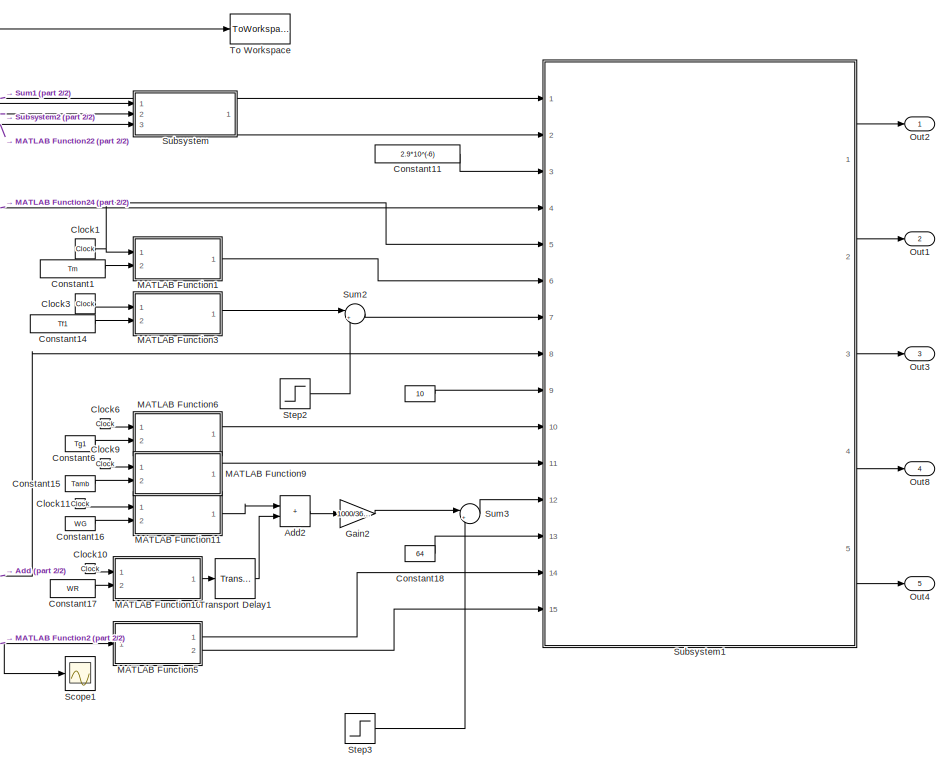
[diagram: root canvas - part 1/2, right side, full height]
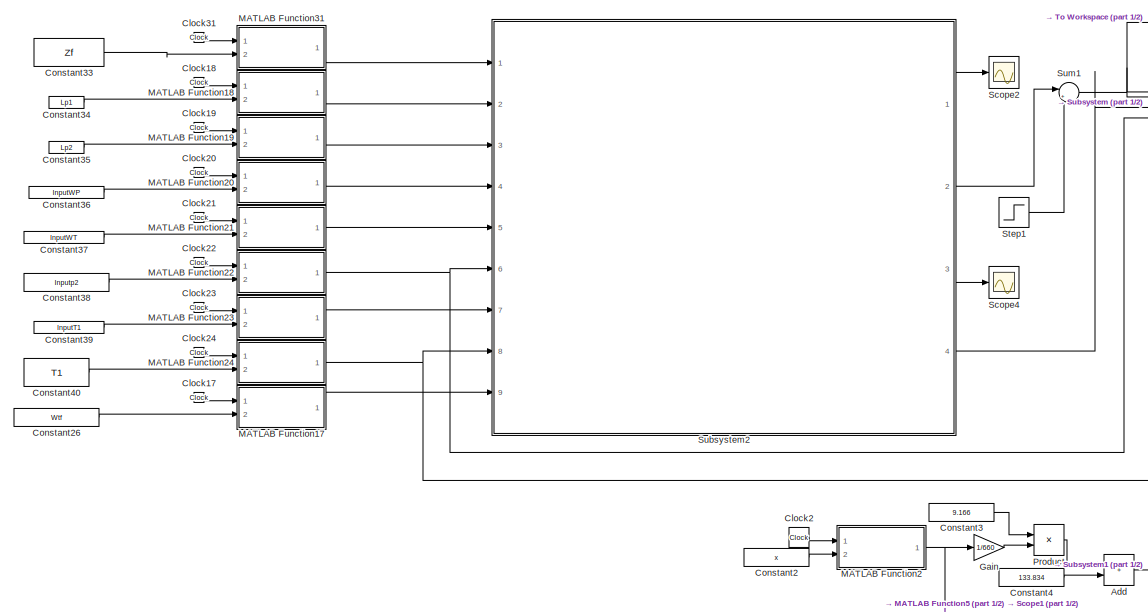
[diagram: root canvas - part 2/2, left side, full height]
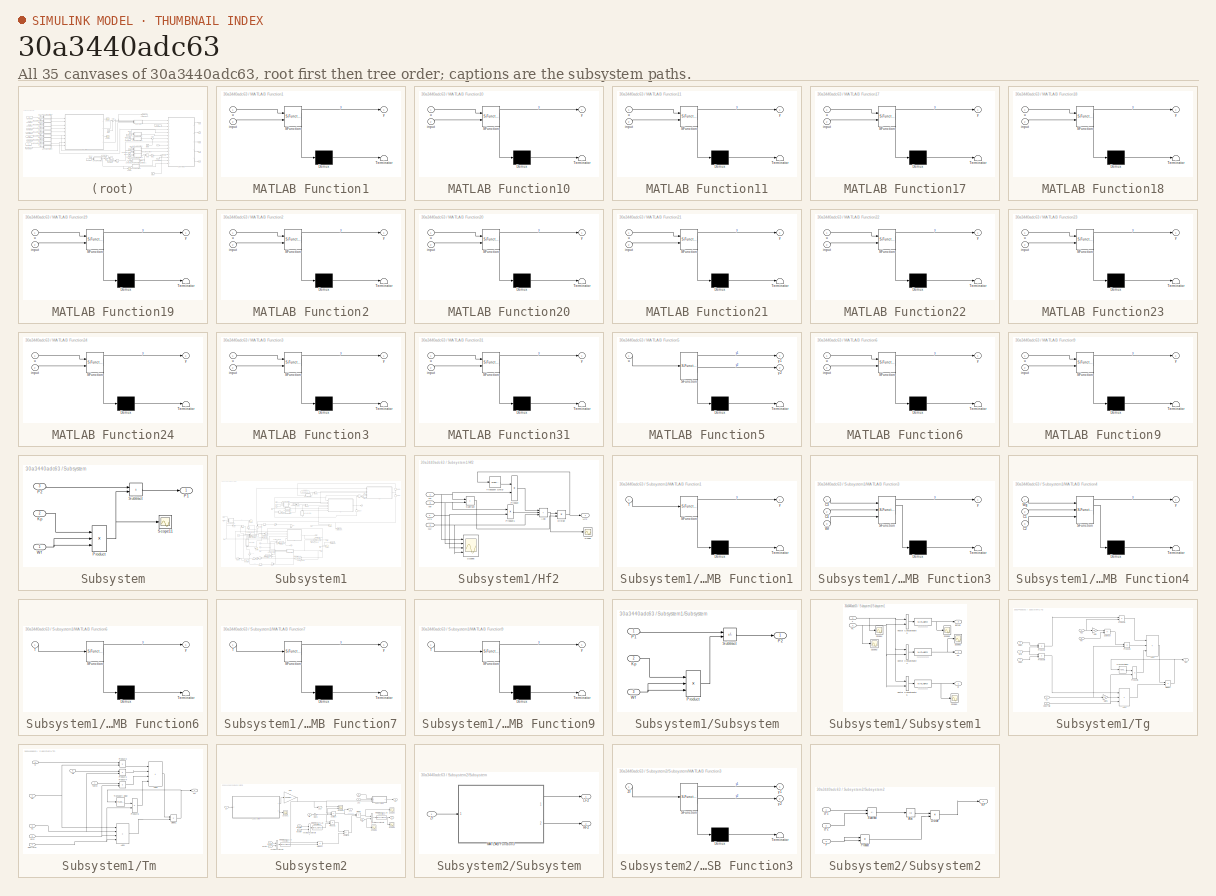
[diagram: thumbnail index - all 35 canvases of the model, root first then tree order]
MODEL slx_30a3440adc63
KIND model
CONFIG AbsTol = auto
CONFIG EnableMultiTasking = off
CONFIG FixedStep = 1
CONFIG MaxStep = auto
CONFIG MinStep = auto
CONFIG RelTol = 1e-3
CONFIG SampleTimeConstraint = Unconstrained
CONFIG SolverName = FixedStepAuto
CONFIG StartTime = 0.0
CONFIG StopTime = 80000
BLOCK [Constant]  
  Value = 10
BLOCK [Sum] Add
  IconShape = rectangular
  Ports = [2, 1]
BLOCK [Sum] Add2
  IconShape = rectangular
  Ports = [2, 1]
BLOCK [Clock] Clock1
BLOCK [Clock] Clock10
BLOCK [Clock] Clock11
BLOCK [Clock] Clock17
BLOCK [Clock] Clock18
BLOCK [Clock] Clock19
BLOCK [Clock] Clock2
BLOCK [Clock] Clock20
BLOCK [Clock] Clock21
BLOCK [Clock] Clock22
BLOCK [Clock] Clock23
BLOCK [Clock] Clock24
BLOCK [Clock] Clock3
BLOCK [Clock] Clock31
BLOCK [Clock] Clock6
BLOCK [Clock] Clock9
BLOCK [Constant] Constant1
  Value = Tm
BLOCK [Constant] Constant11
  Value = 2.9*10^(-6)
BLOCK [Constant] Constant14
  Value = Tf1
BLOCK [Constant] Constant15
  Value = Tamb
BLOCK [Constant] Constant16
  Value = WG
BLOCK [Constant] Constant17
  Value = WR
BLOCK [Constant] Constant18
  Value = 64
BLOCK [Constant] Constant2
  Value = x
BLOCK [Constant] Constant26
  Value = Wtf
BLOCK [Constant] Constant3
  Value = 9.166
BLOCK [Constant] Constant33
  Value = Zf
BLOCK [Constant] Constant34
  Value = Lp1
BLOCK [Constant] Constant35
  Value = Lp2
BLOCK [Constant] Constant36
  Value = InputWP
BLOCK [Constant] Constant37
  Value = InputWT
BLOCK [Constant] Constant38
  Value = Inputp2
BLOCK [Constant] Constant39
  Value = InputT1
BLOCK [Constant] Constant4
  Value = 133.834
BLOCK [Constant] Constant40
  Value = T1
BLOCK [Constant] Constant6
  Value = Tg1
BLOCK [Gain] Gain
  Gain = 1/660
BLOCK [Gain] Gain2
  Gain = 1000/3600
BLOCK [SubSystem] MATLAB Function1
  ErrorFcn = Stateflow.Translate.translate
  PermitHierarchicalResolution = ExplicitOnly
  Ports = [2, 1]
  RequestExecContextInheritance = off
  SFBlockType = MATLAB Function
  TreatAsAtomicUnit = on
BLOCK [Demux] MATLAB Function1/ Demux 
  Outputs = 1
  Ports = [1, 1]
BLOCK [S-Function] MATLAB Function1/ SFunction 
  EnableBusSupport = on
  FunctionName = sf_sfun
  PortCounts = [2 2]
  Ports = [2, 2]
  SFcnIsStateOwnerBlock = off
  SFunctionDeploymentMode = off
  Tag = Stateflow S-Function 1
BLOCK [Terminator] MATLAB Function1/ Terminator 
BLOCK [Inport] MATLAB Function1/input
  Port = 2
BLOCK [Inport] MATLAB Function1/u
BLOCK [Outport] MATLAB Function1/y
  VectorParamsAs1DForOutWhenUnconnected = off
BLOCK [SubSystem] MATLAB Function10
  ErrorFcn = Stateflow.Translate.translate
  PermitHierarchicalResolution = ExplicitOnly
  Ports = [2, 1]
  RequestExecContextInheritance = off
  SFBlockType = MATLAB Function
  TreatAsAtomicUnit = on
BLOCK [Demux] MATLAB Function10/ Demux 
  Outputs = 1
  Ports = [1, 1]
BLOCK [S-Function] MATLAB Function10/ SFunction 
  EnableBusSupport = on
  FunctionName = sf_sfun
  PortCounts = [2 2]
  Ports = [2, 2]
  SFcnIsStateOwnerBlock = off
  SFunctionDeploymentMode = off
  Tag = Stateflow S-Function 20
BLOCK [Terminator] MATLAB Function10/ Terminator 
BLOCK [Inport] MATLAB Function10/input
  Port = 2
BLOCK [Inport] MATLAB Function10/u
BLOCK [Outport] MATLAB Function10/y
  VectorParamsAs1DForOutWhenUnconnected = off
BLOCK [SubSystem] MATLAB Function11
  ErrorFcn = Stateflow.Translate.translate
  PermitHierarchicalResolution = ExplicitOnly
  Ports = [2, 1]
  RequestExecContextInheritance = off
  SFBlockType = MATLAB Function
  TreatAsAtomicUnit = on
BLOCK [Demux] MATLAB Function11/ Demux 
  Outputs = 1
  Ports = [1, 1]
BLOCK [S-Function] MATLAB Function11/ SFunction 
  EnableBusSupport = on
  FunctionName = sf_sfun
  PortCounts = [2 2]
  Ports = [2, 2]
  SFcnIsStateOwnerBlock = off
  SFunctionDeploymentMode = off
  Tag = Stateflow S-Function 21
BLOCK [Terminator] MATLAB Function11/ Terminator 
BLOCK [Inport] MATLAB Function11/input
  Port = 2
BLOCK [Inport] MATLAB Function11/u
BLOCK [Outport] MATLAB Function11/y
  VectorParamsAs1DForOutWhenUnconnected = off
BLOCK [SubSystem] MATLAB Function17
  ErrorFcn = Stateflow.Translate.translate
  PermitHierarchicalResolution = ExplicitOnly
  Ports = [2, 1]
  RequestExecContextInheritance = off
  SFBlockType = MATLAB Function
  TreatAsAtomicUnit = on
BLOCK [Demux] MATLAB Function17/ Demux 
  Outputs = 1
  Ports = [1, 1]
BLOCK [S-Function] MATLAB Function17/ SFunction 
  EnableBusSupport = on
  FunctionName = sf_sfun
  PortCounts = [2 2]
  Ports = [2, 2]
  SFcnIsStateOwnerBlock = off
  SFunctionDeploymentMode = off
  Tag = Stateflow S-Function 29
BLOCK [Terminator] MATLAB Function17/ Terminator 
BLOCK [Inport] MATLAB Function17/input
  Port = 2
BLOCK [Inport] MATLAB Function17/u
BLOCK [Outport] MATLAB Function17/y
  VectorParamsAs1DForOutWhenUnconnected = off
BLOCK [SubSystem] MATLAB Function18
  ErrorFcn = Stateflow.Translate.translate
  PermitHierarchicalResolution = ExplicitOnly
  Ports = [2, 1]
  RequestExecContextInheritance = off
  SFBlockType = MATLAB Function
  TreatAsAtomicUnit = on
BLOCK [Demux] MATLAB Function18/ Demux 
  Outputs = 1
  Ports = [1, 1]
BLOCK [S-Function] MATLAB Function18/ SFunction 
  EnableBusSupport = on
  FunctionName = sf_sfun
  PortCounts = [2 2]
  Ports = [2, 2]
  SFcnIsStateOwnerBlock = off
  SFunctionDeploymentMode = off
  Tag = Stateflow S-Function 30
BLOCK [Terminator] MATLAB Function18/ Terminator 
BLOCK [Inport] MATLAB Function18/input
  Port = 2
BLOCK [Inport] MATLAB Function18/u
BLOCK [Outport] MATLAB Function18/y
  VectorParamsAs1DForOutWhenUnconnected = off
BLOCK [SubSystem] MATLAB Function19
  ErrorFcn = Stateflow.Translate.translate
  PermitHierarchicalResolution = ExplicitOnly
  Ports = [2, 1]
  RequestExecContextInheritance = off
  SFBlockType = MATLAB Function
  TreatAsAtomicUnit = on
BLOCK [Demux] MATLAB Function19/ Demux 
  Outputs = 1
  Ports = [1, 1]
BLOCK [S-Function] MATLAB Function19/ SFunction 
  EnableBusSupport = on
  FunctionName = sf_sfun
  PortCounts = [2 2]
  Ports = [2, 2]
  SFcnIsStateOwnerBlock = off
  SFunctionDeploymentMode = off
  Tag = Stateflow S-Function 31
BLOCK [Terminator] MATLAB Function19/ Terminator 
BLOCK [Inport] MATLAB Function19/input
  Port = 2
BLOCK [Inport] MATLAB Function19/u
BLOCK [Outport] MATLAB Function19/y
  VectorParamsAs1DForOutWhenUnconnected = off
BLOCK [SubSystem] MATLAB Function2
  ErrorFcn = Stateflow.Translate.translate
  PermitHierarchicalResolution = ExplicitOnly
  Ports = [2, 1]
  RequestExecContextInheritance = off
  SFBlockType = MATLAB Function
  TreatAsAtomicUnit = on
BLOCK [Demux] MATLAB Function2/ Demux 
  Outputs = 1
  Ports = [1, 1]
BLOCK [S-Function] MATLAB Function2/ SFunction 
  EnableBusSupport = on
  FunctionName = sf_sfun
  PortCounts = [2 2]
  Ports = [2, 2]
  SFcnIsStateOwnerBlock = off
  SFunctionDeploymentMode = off
  Tag = Stateflow S-Function 2
BLOCK [Terminator] MATLAB Function2/ Terminator 
BLOCK [Inport] MATLAB Function2/input
  Port = 2
BLOCK [Inport] MATLAB Function2/u
BLOCK [Outport] MATLAB Function2/y
  VectorParamsAs1DForOutWhenUnconnected = off
BLOCK [SubSystem] MATLAB Function20
  ErrorFcn = Stateflow.Translate.translate
  PermitHierarchicalResolution = ExplicitOnly
  Ports = [2, 1]
  RequestExecContextInheritance = off
  SFBlockType = MATLAB Function
  TreatAsAtomicUnit = on
BLOCK [Demux] MATLAB Function20/ Demux 
  Outputs = 1
  Ports = [1, 1]
BLOCK [S-Function] MATLAB Function20/ SFunction 
  EnableBusSupport = on
  FunctionName = sf_sfun
  PortCounts = [2 2]
  Ports = [2, 2]
  SFcnIsStateOwnerBlock = off
  SFunctionDeploymentMode = off
  Tag = Stateflow S-Function 32
BLOCK [Terminator] MATLAB Function20/ Terminator 
BLOCK [Inport] MATLAB Function20/input
  Port = 2
BLOCK [Inport] MATLAB Function20/u
BLOCK [Outport] MATLAB Function20/y
  VectorParamsAs1DForOutWhenUnconnected = off
BLOCK [SubSystem] MATLAB Function21
  ErrorFcn = Stateflow.Translate.translate
  PermitHierarchicalResolution = ExplicitOnly
  Ports = [2, 1]
  RequestExecContextInheritance = off
  SFBlockType = MATLAB Function
  TreatAsAtomicUnit = on
BLOCK [Demux] MATLAB Function21/ Demux 
  Outputs = 1
  Ports = [1, 1]
BLOCK [S-Function] MATLAB Function21/ SFunction 
  EnableBusSupport = on
  FunctionName = sf_sfun
  PortCounts = [2 2]
  Ports = [2, 2]
  SFcnIsStateOwnerBlock = off
  SFunctionDeploymentMode = off
  Tag = Stateflow S-Function 33
BLOCK [Terminator] MATLAB Function21/ Terminator 
BLOCK [Inport] MATLAB Function21/input
  Port = 2
BLOCK [Inport] MATLAB Function21/u
BLOCK [Outport] MATLAB Function21/y
  VectorParamsAs1DForOutWhenUnconnected = off
BLOCK [SubSystem] MATLAB Function22
  ErrorFcn = Stateflow.Translate.translate
  PermitHierarchicalResolution = ExplicitOnly
  Ports = [2, 1]
  RequestExecContextInheritance = off
  SFBlockType = MATLAB Function
  TreatAsAtomicUnit = on
BLOCK [Demux] MATLAB Function22/ Demux 
  Outputs = 1
  Ports = [1, 1]
BLOCK [S-Function] MATLAB Function22/ SFunction 
  EnableBusSupport = on
  FunctionName = sf_sfun
  PortCounts = [2 2]
  Ports = [2, 2]
  SFcnIsStateOwnerBlock = off
  SFunctionDeploymentMode = off
  Tag = Stateflow S-Function 34
BLOCK [Terminator] MATLAB Function22/ Terminator 
BLOCK [Inport] MATLAB Function22/input
  Port = 2
BLOCK [Inport] MATLAB Function22/u
BLOCK [Outport] MATLAB Function22/y
  VectorParamsAs1DForOutWhenUnconnected = off
BLOCK [SubSystem] MATLAB Function23
  ErrorFcn = Stateflow.Translate.translate
  PermitHierarchicalResolution = ExplicitOnly
  Ports = [2, 1]
  RequestExecContextInheritance = off
  SFBlockType = MATLAB Function
  TreatAsAtomicUnit = on
BLOCK [Demux] MATLAB Function23/ Demux 
  Outputs = 1
  Ports = [1, 1]
BLOCK [S-Function] MATLAB Function23/ SFunction 
  EnableBusSupport = on
  FunctionName = sf_sfun
  PortCounts = [2 2]
  Ports = [2, 2]
  SFcnIsStateOwnerBlock = off
  SFunctionDeploymentMode = off
  Tag = Stateflow S-Function 35
BLOCK [Terminator] MATLAB Function23/ Terminator 
BLOCK [Inport] MATLAB Function23/input
  Port = 2
BLOCK [Inport] MATLAB Function23/u
BLOCK [Outport] MATLAB Function23/y
  VectorParamsAs1DForOutWhenUnconnected = off
BLOCK [SubSystem] MATLAB Function24
  ErrorFcn = Stateflow.Translate.translate
  PermitHierarchicalResolution = ExplicitOnly
  Ports = [2, 1]
  RequestExecContextInheritance = off
  SFBlockType = MATLAB Function
  TreatAsAtomicUnit = on
BLOCK [Demux] MATLAB Function24/ Demux 
  Outputs = 1
  Ports = [1, 1]
BLOCK [S-Function] MATLAB Function24/ SFunction 
  EnableBusSupport = on
  FunctionName = sf_sfun
  PortCounts = [2 2]
  Ports = [2, 2]
  SFcnIsStateOwnerBlock = off
  SFunctionDeploymentMode = off
  Tag = Stateflow S-Function 36
BLOCK [Terminator] MATLAB Function24/ Terminator 
BLOCK [Inport] MATLAB Function24/input
  Port = 2
BLOCK [Inport] MATLAB Function24/u
BLOCK [Outport] MATLAB Function24/y
  VectorParamsAs1DForOutWhenUnconnected = off
BLOCK [SubSystem] MATLAB Function3
  ErrorFcn = Stateflow.Translate.translate
  PermitHierarchicalResolution = ExplicitOnly
  Ports = [2, 1]
  RequestExecContextInheritance = off
  SFBlockType = MATLAB Function
  TreatAsAtomicUnit = on
BLOCK [Demux] MATLAB Function3/ Demux 
  Outputs = 1
  Ports = [1, 1]
BLOCK [S-Function] MATLAB Function3/ SFunction 
  EnableBusSupport = on
  FunctionName = sf_sfun
  PortCounts = [2 2]
  Ports = [2, 2]
  SFcnIsStateOwnerBlock = off
  SFunctionDeploymentMode = off
  Tag = Stateflow S-Function 8
BLOCK [Terminator] MATLAB Function3/ Terminator 
BLOCK [Inport] MATLAB Function3/input
  Port = 2
BLOCK [Inport] MATLAB Function3/u
BLOCK [Outport] MATLAB Function3/y
  VectorParamsAs1DForOutWhenUnconnected = off
BLOCK [SubSystem] MATLAB Function31
  ErrorFcn = Stateflow.Translate.translate
  PermitHierarchicalResolution = ExplicitOnly
  Ports = [2, 1]
  RequestExecContextInheritance = off
  SFBlockType = MATLAB Function
  TreatAsAtomicUnit = on
BLOCK [Demux] MATLAB Function31/ Demux 
  Outputs = 1
  Ports = [1, 1]
BLOCK [S-Function] MATLAB Function31/ SFunction 
  EnableBusSupport = on
  FunctionName = sf_sfun
  PortCounts = [2 2]
  Ports = [2, 2]
  SFcnIsStateOwnerBlock = off
  SFunctionDeploymentMode = off
  Tag = Stateflow S-Function 43
BLOCK [Terminator] MATLAB Function31/ Terminator 
BLOCK [Inport] MATLAB Function31/input
  Port = 2
BLOCK [Inport] MATLAB Function31/u
BLOCK [Outport] MATLAB Function31/y
  VectorParamsAs1DForOutWhenUnconnected = off
BLOCK [SubSystem] MATLAB Function5
  ErrorFcn = Stateflow.Translate.translate
  PermitHierarchicalResolution = ExplicitOnly
  Ports = [1, 2]
  RequestExecContextInheritance = off
  SFBlockType = MATLAB Function
  TreatAsAtomicUnit = on
BLOCK [Demux] MATLAB Function5/ Demux 
  Outputs = 1
  Ports = [1, 1]
BLOCK [S-Function] MATLAB Function5/ SFunction 
  EnableBusSupport = on
  FunctionName = sf_sfun
  PortCounts = [1 3]
  Ports = [1, 3]
  SFcnIsStateOwnerBlock = off
  SFunctionDeploymentMode = off
  Tag = Stateflow S-Function 5
BLOCK [Terminator] MATLAB Function5/ Terminator 
BLOCK [Inport] MATLAB Function5/u
BLOCK [Outport] MATLAB Function5/y1
  VectorParamsAs1DForOutWhenUnconnected = off
BLOCK [Outport] MATLAB Function5/y2
  Port = 2
  VectorParamsAs1DForOutWhenUnconnected = off
BLOCK [SubSystem] MATLAB Function6
  ErrorFcn = Stateflow.Translate.translate
  PermitHierarchicalResolution = ExplicitOnly
  Ports = [2, 1]
  RequestExecContextInheritance = off
  SFBlockType = MATLAB Function
  TreatAsAtomicUnit = on
BLOCK [Demux] MATLAB Function6/ Demux 
  Outputs = 1
  Ports = [1, 1]
BLOCK [S-Function] MATLAB Function6/ SFunction 
  EnableBusSupport = on
  FunctionName = sf_sfun
  PortCounts = [2 2]
  Ports = [2, 2]
  SFcnIsStateOwnerBlock = off
  SFunctionDeploymentMode = off
  Tag = Stateflow S-Function 9
BLOCK [Terminator] MATLAB Function6/ Terminator 
BLOCK [Inport] MATLAB Function6/input
  Port = 2
BLOCK [Inport] MATLAB Function6/u
BLOCK [Outport] MATLAB Function6/y
  VectorParamsAs1DForOutWhenUnconnected = off
BLOCK [SubSystem] MATLAB Function9
  ErrorFcn = Stateflow.Translate.translate
  PermitHierarchicalResolution = ExplicitOnly
  Ports = [2, 1]
  RequestExecContextInheritance = off
  SFBlockType = MATLAB Function
  TreatAsAtomicUnit = on
BLOCK [Demux] MATLAB Function9/ Demux 
  Outputs = 1
  Ports = [1, 1]
BLOCK [S-Function] MATLAB Function9/ SFunction 
  EnableBusSupport = on
  FunctionName = sf_sfun
  PortCounts = [2 2]
  Ports = [2, 2]
  SFcnIsStateOwnerBlock = off
  SFunctionDeploymentMode = off
  Tag = Stateflow S-Function 14
BLOCK [Terminator] MATLAB Function9/ Terminator 
BLOCK [Inport] MATLAB Function9/input
  Port = 2
BLOCK [Inport] MATLAB Function9/u
BLOCK [Outport] MATLAB Function9/y
  VectorParamsAs1DForOutWhenUnconnected = off
BLOCK [Outport] Out1
  Port = 2
  VectorParamsAs1DForOutWhenUnconnected = off
BLOCK [Outport] Out2
  VectorParamsAs1DForOutWhenUnconnected = off
BLOCK [Outport] Out3
  Port = 3
  VectorParamsAs1DForOutWhenUnconnected = off
BLOCK [Outport] Out4
  Port = 5
  VectorParamsAs1DForOutWhenUnconnected = off
BLOCK [Outport] Out8
  Port = 4
  VectorParamsAs1DForOutWhenUnconnected = off
BLOCK [Product] Product
  Ports = [2, 1]
BLOCK [Scope] Scope1
  Floating = off
  NumInputPorts = 1
  Ports = [1]
  ScopeSpecificationString = Simulink.scopes.TimeScopeBlockCfg('CurrentConfiguration', extmgr.ConfigurationSet(extmgr.Configuration('Core','General UI',true),extmgr.Configuration('Core','Source UI',true),extmgr.Configuration('Sources','WiredSimulink',true,'DataLoggingVariableName','ScopeData2'),extmgr.Configuration('Visuals','Time Domain',true,'SerializedDisplays',{struct('MinYLimReal','298.75194','MaxYLimReal','690.01458','Y...<+1484ch>
BLOCK [Scope] Scope2
  Floating = off
  NumInputPorts = 1
  Ports = [1]
  ScopeSpecificationString = Simulink.scopes.TimeScopeBlockCfg('CurrentConfiguration', extmgr.ConfigurationSet(extmgr.Configuration('Core','General UI',true),extmgr.Configuration('Core','Source UI',true),extmgr.Configuration('Sources','WiredSimulink',true,'DataLoggingVariableName','ScopeData2'),extmgr.Configuration('Visuals','Time Domain',true,'SerializedDisplays',{struct('MinYLimReal','150.5296','MaxYLimReal','274.10026','YL...<+1381ch>
BLOCK [Scope] Scope4
  Floating = off
  NumInputPorts = 1
  Ports = [1]
  ScopeSpecificationString = Simulink.scopes.TimeScopeBlockCfg('CurrentConfiguration', extmgr.ConfigurationSet(extmgr.Configuration('Core','General UI',true),extmgr.Configuration('Core','Source UI',true),extmgr.Configuration('Sources','WiredSimulink',true,'DataLoggingVariableName','ScopeData7'),extmgr.Configuration('Visuals','Time Domain',true,'SerializedDisplays',{struct('MinYLimReal','11.50114','MaxYLimReal','19.48884','YLa...<+1377ch>
BLOCK [Step] Step1
  After = 0
  SampleTime = 1000
BLOCK [Step] Step2
  After = 0
  SampleTime = 1000
BLOCK [Step] Step3
  After = 0
  SampleTime = 1000
BLOCK [SubSystem] Subsystem
  Ports = [3, 1]
  RequestExecContextInheritance = off
BLOCK [Inport] Subsystem/Kp
  Port = 2
BLOCK [Outport] Subsystem/P1
  VectorParamsAs1DForOutWhenUnconnected = off
BLOCK [Inport] Subsystem/P2
  Port = 3
BLOCK [Product] Subsystem/Product
  Inputs = 3
  Ports = [3, 1]
BLOCK [Scope] Subsystem/Scope11
  Floating = off
  NumInputPorts = 1
  Ports = [1]
  ScopeSpecificationString = Simulink.scopes.TimeScopeBlockCfg('CurrentConfiguration', extmgr.ConfigurationSet(extmgr.Configuration('Core','General UI',true),extmgr.Configuration('Core','Source UI',true),extmgr.Configuration('Sources','WiredSimulink',true,'DataLoggingVariableName','ScopeData2'),extmgr.Configuration('Visuals','Time Domain',true,'SerializedDisplays',{struct('MinYLimReal','0.02555','MaxYLimReal','0.04674','YLabe...<+1411ch>
BLOCK [Sum] Subsystem/Subtract
  IconShape = rectangular
  Ports = [2, 1]
BLOCK [Inport] Subsystem/Wf
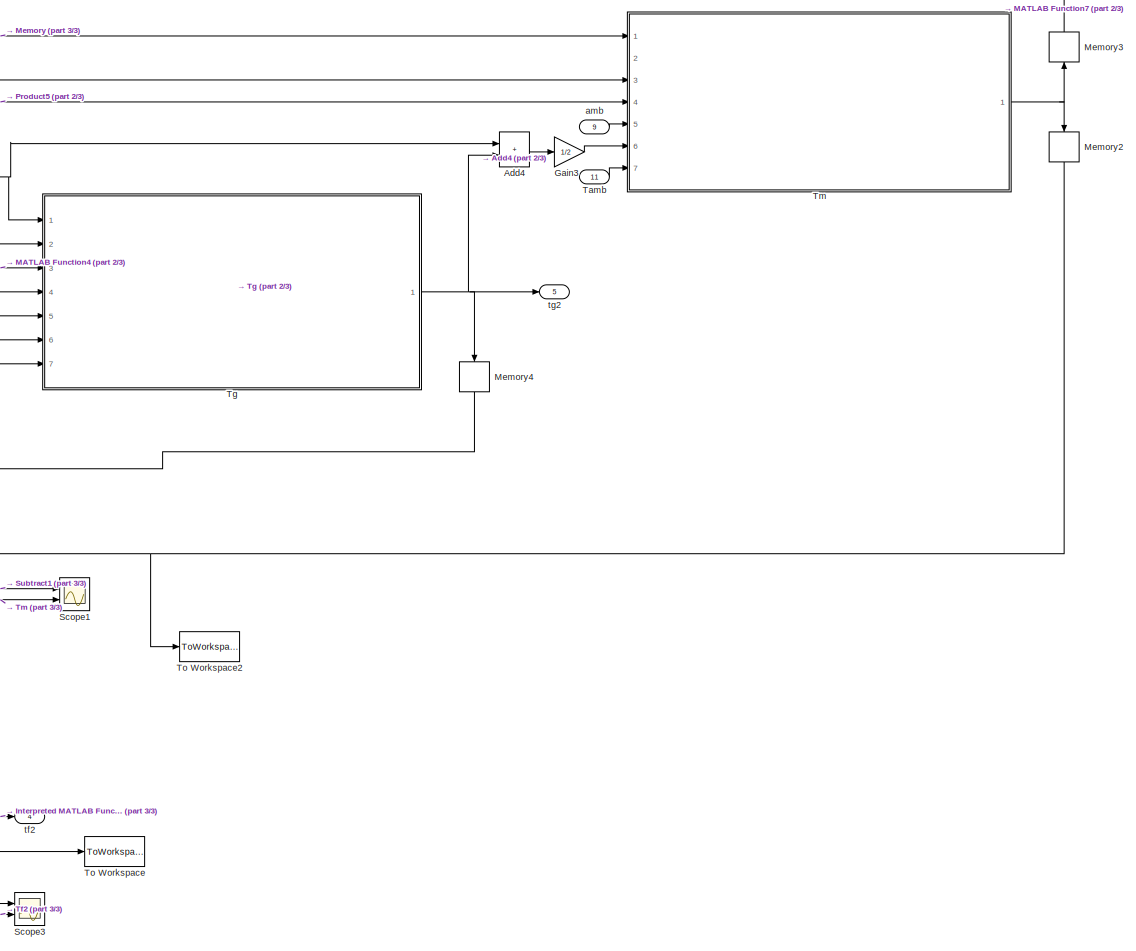
[diagram: Subsystem1 - part 1/3, right side, full height]
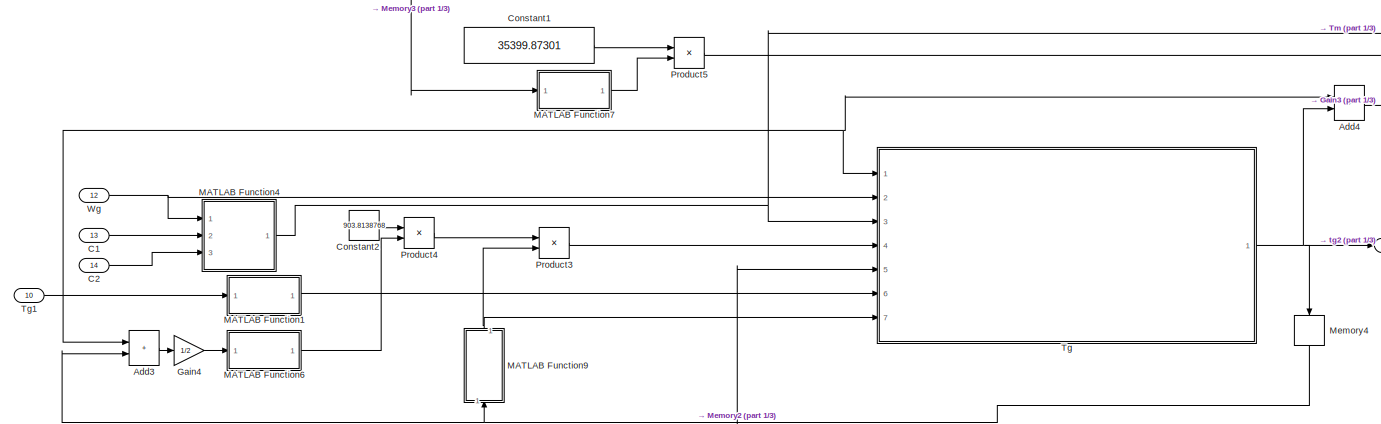
[diagram: Subsystem1 - part 2/3, top center region]
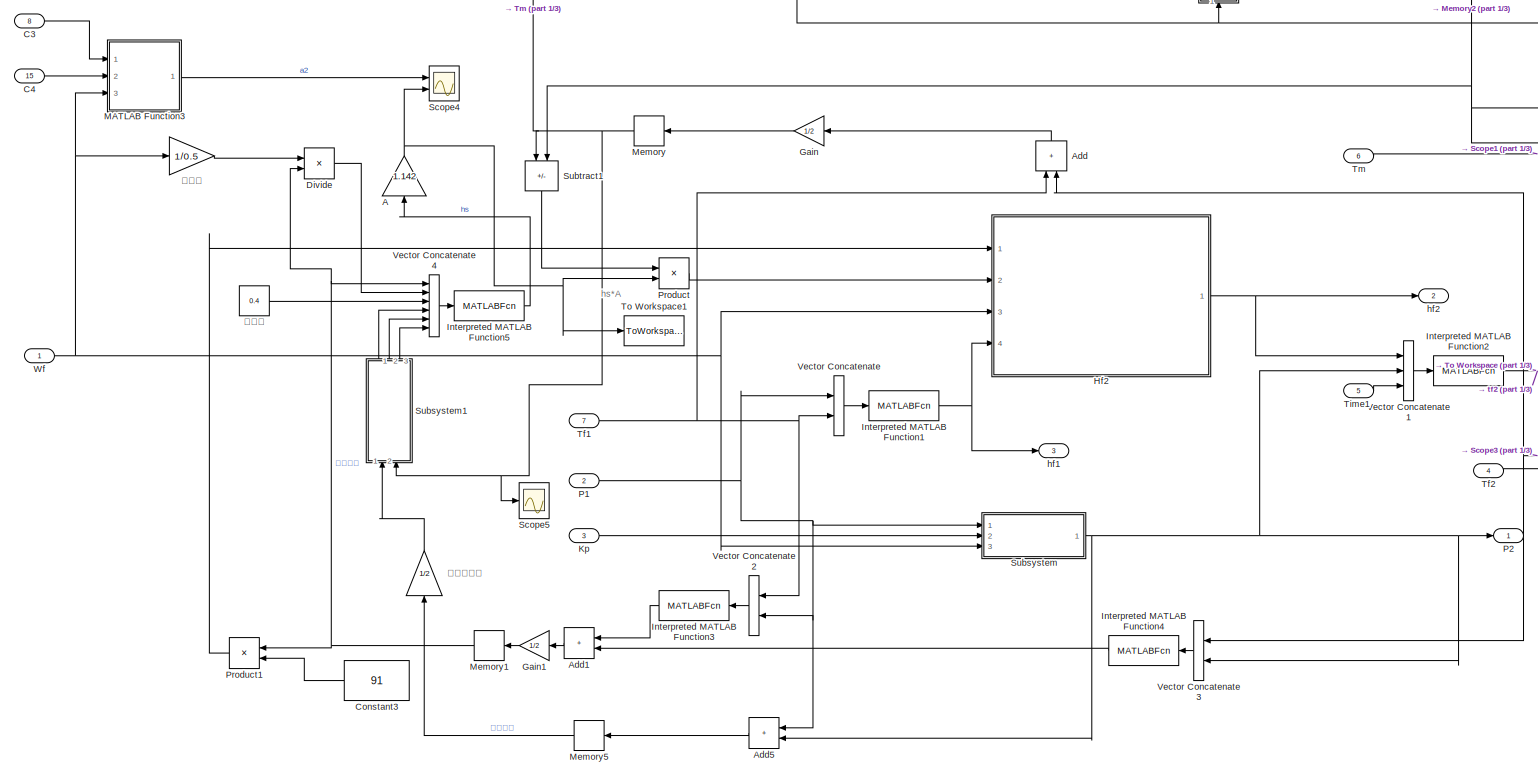
[diagram: Subsystem1 - part 3/3, bottom left region]
BLOCK [SubSystem] Subsystem1
  Ports = [15, 5]
  RequestExecContextInheritance = off
BLOCK [Gain] Subsystem1/A
  Gain = 1.142
  NameLocation = right
BLOCK [Sum] Subsystem1/Add
  IconShape = rectangular
  NameLocation = right
  Ports = [2, 1]
BLOCK [Sum] Subsystem1/Add1
  IconShape = rectangular
  NameLocation = top
  Ports = [2, 1]
BLOCK [Sum] Subsystem1/Add3
  IconShape = rectangular
  Ports = [2, 1]
BLOCK [Sum] Subsystem1/Add4
  IconShape = rectangular
  Ports = [2, 1]
BLOCK [Sum] Subsystem1/Add5
  IconShape = rectangular
  NameLocation = top
  Ports = [2, 1]
BLOCK [Inport] Subsystem1/C1
  Port = 13
BLOCK [Inport] Subsystem1/C2
  Port = 14
BLOCK [Inport] Subsystem1/C3
  Port = 8
BLOCK [Inport] Subsystem1/C4
  Port = 15
BLOCK [Constant] Subsystem1/Constant1
  Value = 35399.87301
BLOCK [Constant] Subsystem1/Constant2
  Value = 903.8138768
BLOCK [Constant] Subsystem1/Constant3
  NameLocation = top
  Value = 91
BLOCK [Product] Subsystem1/Divide
  Inputs = */
  Ports = [2, 1]
BLOCK [Gain] Subsystem1/Gain
  Gain = 1/2
  NameLocation = top
BLOCK [Gain] Subsystem1/Gain1
  Gain = 1/2
  NameLocation = top
BLOCK [Gain] Subsystem1/Gain3
  Gain = 1/2
BLOCK [Gain] Subsystem1/Gain4
  Gain = 1/2
BLOCK [SubSystem] Subsystem1/Hf2
  Ports = [4, 1]
  RequestExecContextInheritance = off
BLOCK [Sum] Subsystem1/Hf2/Add
  IconShape = rectangular
  Inputs = +++
  Ports = [3, 1]
BLOCK [Product] Subsystem1/Hf2/Divide
  Inputs = */
  Ports = [2, 1]
BLOCK [Inport] Subsystem1/Hf2/Hf1
  Port = 4
BLOCK [Outport] Subsystem1/Hf2/Hf2
  VectorParamsAs1DForOutWhenUnconnected = off
BLOCK [Inport] Subsystem1/Hf2/Mf
BLOCK [Product] Subsystem1/Hf2/Product
  Ports = [2, 1]
BLOCK [Product] Subsystem1/Hf2/Product1
  Ports = [2, 1]
BLOCK [Inport] Subsystem1/Hf2/Q2
  Port = 2
BLOCK [Scope] Subsystem1/Hf2/Scope
  Floating = off
  NumInputPorts = 1
  Ports = [1]
  ScopeSpecificationString = Simulink.scopes.TimeScopeBlockCfg('CurrentConfiguration', extmgr.ConfigurationSet(extmgr.Configuration('Core','General UI',true),extmgr.Configuration('Core','Source UI',true),extmgr.Configuration('Sources','WiredSimulink',true,'DataLoggingVariableName','ScopeData11'),extmgr.Configuration('Visuals','Time Domain',true,'SerializedDisplays',{struct('MinYLimReal','-3739150.5118','MaxYLimReal','44057432...<+1411ch>
BLOCK [Scope] Subsystem1/Hf2/Scope5
  Floating = off
  NumInputPorts = 4
  Ports = [4]
  ScopeSpecificationString = Simulink.scopes.TimeScopeBlockCfg('CurrentConfiguration', extmgr.ConfigurationSet(extmgr.Configuration('Core','General UI',true),extmgr.Configuration('Core','Source UI',true),extmgr.Configuration('Sources','WiredSimulink',true,'DataLoggingVariableName','ScopeData9'),extmgr.Configuration('Visuals','Time Domain',true,'SerializedDisplays',{struct('MinYLimReal','-133852.32646','MaxYLimReal','412255.81...<+1578ch>
BLOCK [Sum] Subsystem1/Hf2/Subtract
  IconShape = rectangular
  Ports = [2, 1]
BLOCK [TransportDelay] Subsystem1/Hf2/Transport Delay
  Ports = [1, 1]
BLOCK [Inport] Subsystem1/Hf2/Wf
  Port = 3
BLOCK [MATLABFcn] Subsystem1/Interpreted MATLAB Function1
  MATLABFcn = precl(u(1),u(2))
  Ports = [1, 1]
BLOCK [MATLABFcn] Subsystem1/Interpreted MATLAB Function2
  MATLABFcn = preclT(u(1),u(2),u(3))
  Ports = [1, 1]
BLOCK [MATLABFcn] Subsystem1/Interpreted MATLAB Function3
  MATLABFcn = preclPP(u(1),u(2))
  NameLocation = top
  Ports = [1, 1]
BLOCK [MATLABFcn] Subsystem1/Interpreted MATLAB Function4
  MATLABFcn = preclPP(u(1),u(2))
  NameLocation = top
  Ports = [1, 1]
BLOCK [MATLABFcn] Subsystem1/Interpreted MATLAB Function5
  MATLABFcn = get_hs(u(1),u(2),u(3),u(4),u(5),u(6))
  Ports = [1, 1]
BLOCK [Inport] Subsystem1/Kp
  Port = 3
BLOCK [SubSystem] Subsystem1/MATLAB Function1
  ErrorFcn = Stateflow.Translate.translate
  PermitHierarchicalResolution = ExplicitOnly
  Ports = [1, 1]
  RequestExecContextInheritance = off
  SFBlockType = MATLAB Function
  TreatAsAtomicUnit = on
BLOCK [Demux] Subsystem1/MATLAB Function1/ Demux 
  Outputs = 1
  Ports = [1, 1]
BLOCK [S-Function] Subsystem1/MATLAB Function1/ SFunction 
  EnableBusSupport = on
  FunctionName = sf_sfun
  PortCounts = [1 2]
  Ports = [1, 2]
  SFcnIsStateOwnerBlock = off
  SFunctionDeploymentMode = off
  Tag = Stateflow S-Function 23
BLOCK [Terminator] Subsystem1/MATLAB Function1/ Terminator 
BLOCK [Inport] Subsystem1/MATLAB Function1/T
BLOCK [Outport] Subsystem1/MATLAB Function1/y
  VectorParamsAs1DForOutWhenUnconnected = off
BLOCK [SubSystem] Subsystem1/MATLAB Function3
  ErrorFcn = Stateflow.Translate.translate
  PermitHierarchicalResolution = ExplicitOnly
  Ports = [3, 1]
  RequestExecContextInheritance = off
  SFBlockType = MATLAB Function
  TreatAsAtomicUnit = on
BLOCK [Demux] Subsystem1/MATLAB Function3/ Demux 
  Outputs = 1
  Ports = [1, 1]
BLOCK [S-Function] Subsystem1/MATLAB Function3/ SFunction 
  EnableBusSupport = on
  FunctionName = sf_sfun
  PortCounts = [3 2]
  Ports = [3, 2]
  SFcnIsStateOwnerBlock = off
  SFunctionDeploymentMode = off
  Tag = Stateflow S-Function 4
BLOCK [Terminator] Subsystem1/MATLAB Function3/ Terminator 
BLOCK [Inport] Subsystem1/MATLAB Function3/C3
BLOCK [Inport] Subsystem1/MATLAB Function3/C4
  Port = 2
BLOCK [Inport] Subsystem1/MATLAB Function3/Wf
  Port = 3
BLOCK [Outport] Subsystem1/MATLAB Function3/y
  VectorParamsAs1DForOutWhenUnconnected = off
BLOCK [SubSystem] Subsystem1/MATLAB Function4
  ErrorFcn = Stateflow.Translate.translate
  PermitHierarchicalResolution = ExplicitOnly
  Ports = [3, 1]
  RequestExecContextInheritance = off
  SFBlockType = MATLAB Function
  TreatAsAtomicUnit = on
BLOCK [Demux] Subsystem1/MATLAB Function4/ Demux 
  Outputs = 1
  Ports = [1, 1]
BLOCK [S-Function] Subsystem1/MATLAB Function4/ SFunction 
  EnableBusSupport = on
  FunctionName = sf_sfun
  PortCounts = [3 2]
  Ports = [3, 2]
  SFcnIsStateOwnerBlock = off
  SFunctionDeploymentMode = off
  Tag = Stateflow S-Function 24
BLOCK [Terminator] Subsystem1/MATLAB Function4/ Terminator 
BLOCK [Inport] Subsystem1/MATLAB Function4/C1
  Port = 2
BLOCK [Inport] Subsystem1/MATLAB Function4/C2
  Port = 3
BLOCK [Inport] Subsystem1/MATLAB Function4/Wg
BLOCK [Outport] Subsystem1/MATLAB Function4/y
  VectorParamsAs1DForOutWhenUnconnected = off
BLOCK [SubSystem] Subsystem1/MATLAB Function6
  ErrorFcn = Stateflow.Translate.translate
  PermitHierarchicalResolution = ExplicitOnly
  Ports = [1, 1]
  RequestExecContextInheritance = off
  SFBlockType = MATLAB Function
  TreatAsAtomicUnit = on
BLOCK [Demux] Subsystem1/MATLAB Function6/ Demux 
  Outputs = 1
  Ports = [1, 1]
BLOCK [S-Function] Subsystem1/MATLAB Function6/ SFunction 
  EnableBusSupport = on
  FunctionName = sf_sfun
  PortCounts = [1 2]
  Ports = [1, 2]
  SFcnIsStateOwnerBlock = off
  SFunctionDeploymentMode = off
  Tag = Stateflow S-Function 26
BLOCK [Terminator] Subsystem1/MATLAB Function6/ Terminator 
BLOCK [Inport] Subsystem1/MATLAB Function6/T
BLOCK [Outport] Subsystem1/MATLAB Function6/y
  VectorParamsAs1DForOutWhenUnconnected = off
BLOCK [SubSystem] Subsystem1/MATLAB Function7
  ErrorFcn = Stateflow.Translate.translate
  PermitHierarchicalResolution = ExplicitOnly
  Ports = [1, 1]
  RequestExecContextInheritance = off
  SFBlockType = MATLAB Function
  TreatAsAtomicUnit = on
BLOCK [Demux] Subsystem1/MATLAB Function7/ Demux 
  Outputs = 1
  Ports = [1, 1]
BLOCK [S-Function] Subsystem1/MATLAB Function7/ SFunction 
  EnableBusSupport = on
  FunctionName = sf_sfun
  PortCounts = [1 2]
  Ports = [1, 2]
  SFcnIsStateOwnerBlock = off
  SFunctionDeploymentMode = off
  Tag = Stateflow S-Function 27
BLOCK [Terminator] Subsystem1/MATLAB Function7/ Terminator 
BLOCK [Inport] Subsystem1/MATLAB Function7/T
BLOCK [Outport] Subsystem1/MATLAB Function7/y
  VectorParamsAs1DForOutWhenUnconnected = off
BLOCK [SubSystem] Subsystem1/MATLAB Function9
  ErrorFcn = Stateflow.Translate.translate
  NameLocation = right
  PermitHierarchicalResolution = ExplicitOnly
  Ports = [1, 1]
  RequestExecContextInheritance = off
  SFBlockType = MATLAB Function
  TreatAsAtomicUnit = on
BLOCK [Demux] Subsystem1/MATLAB Function9/ Demux 
  Outputs = 1
  Ports = [1, 1]
BLOCK [S-Function] Subsystem1/MATLAB Function9/ SFunction 
  EnableBusSupport = on
  FunctionName = sf_sfun
  PortCounts = [1 2]
  Ports = [1, 2]
  SFcnIsStateOwnerBlock = off
  SFunctionDeploymentMode = off
  Tag = Stateflow S-Function 37
BLOCK [Terminator] Subsystem1/MATLAB Function9/ Terminator 
BLOCK [Inport] Subsystem1/MATLAB Function9/T
BLOCK [Outport] Subsystem1/MATLAB Function9/y
  VectorParamsAs1DForOutWhenUnconnected = off
BLOCK [Memory] Subsystem1/Memory
  InitialCondition = 450
  NameLocation = top
BLOCK [Memory] Subsystem1/Memory1
  InitialCondition = 52
  NameLocation = top
BLOCK [Memory] Subsystem1/Memory2
  NameLocation = left
BLOCK [Memory] Subsystem1/Memory3
  NameLocation = right
BLOCK [Memory] Subsystem1/Memory4
  NameLocation = left
BLOCK [Memory] Subsystem1/Memory5
  InitialCondition = 52
  NameLocation = top
BLOCK [Inport] Subsystem1/P1
  Port = 2
BLOCK [Outport] Subsystem1/P2
  VectorParamsAs1DForOutWhenUnconnected = off
BLOCK [Product] Subsystem1/Product
  Ports = [2, 1]
BLOCK [Product] Subsystem1/Product1
  NameLocation = top
  Ports = [2, 1]
BLOCK [Product] Subsystem1/Product3
  Ports = [2, 1]
BLOCK [Product] Subsystem1/Product4
  Ports = [2, 1]
BLOCK [Product] Subsystem1/Product5
  Ports = [2, 1]
BLOCK [Scope] Subsystem1/Scope1
  Floating = off
  NumInputPorts = 2
  Ports = [2]
  ScopeSpecificationString = Simulink.scopes.TimeScopeBlockCfg('CurrentConfiguration', extmgr.ConfigurationSet(extmgr.Configuration('Core','General UI',true),extmgr.Configuration('Core','Source UI',true),extmgr.Configuration('Sources','WiredSimulink',true,'DataLoggingVariableName','ScopeData1'),extmgr.Configuration('Visuals','Time Domain',true,'SerializedDisplays',{struct('MinYLimReal','-67.11308','MaxYLimReal','604.0177','YL...<+1449ch>
BLOCK [Scope] Subsystem1/Scope3
  Floating = off
  NumInputPorts = 2
  Ports = [2]
  ScopeSpecificationString = Simulink.scopes.TimeScopeBlockCfg('CurrentConfiguration', extmgr.ConfigurationSet(extmgr.Configuration('Core','General UI',true),extmgr.Configuration('Core','Source UI',true),extmgr.Configuration('Sources','WiredSimulink',true,'DataLoggingVariableName','ScopeData1'),extmgr.Configuration('Visuals','Time Domain',true,'SerializedDisplays',{struct('MinYLimReal','488.23549','MaxYLimReal','548.3452','YL...<+1474ch>
BLOCK [Scope] Subsystem1/Scope4
  Floating = off
  NumInputPorts = 2
  Ports = [2]
  ScopeSpecificationString = Simulink.scopes.TimeScopeBlockCfg('CurrentConfiguration', extmgr.ConfigurationSet(extmgr.Configuration('Core','General UI',true),extmgr.Configuration('Core','Source UI',true),extmgr.Configuration('Sources','WiredSimulink',true,'DataLoggingVariableName','ScopeData1'),extmgr.Configuration('Visuals','Time Domain',true,'SerializedDisplays',{struct('MinYLimReal','893.15508','MaxYLimReal','3441.86684','...<+1429ch>
BLOCK [Scope] Subsystem1/Scope5
  Floating = off
  NumInputPorts = 1
  Ports = [1]
  ScopeSpecificationString = Simulink.scopes.TimeScopeBlockCfg('CurrentConfiguration', extmgr.ConfigurationSet(extmgr.Configuration('Core','General UI',true),extmgr.Configuration('Core','Source UI',true),extmgr.Configuration('Sources','WiredSimulink',true,'DataLoggingVariableName','ScopeData1'),extmgr.Configuration('Visuals','Time Domain',true,'SerializedDisplays',{struct('MinYLimReal','144.55792','MaxYLimReal','491.52125','Y...<+1450ch>
BLOCK [SubSystem] Subsystem1/Subsystem
  Ports = [3, 1]
  RequestExecContextInheritance = off
BLOCK [Inport] Subsystem1/Subsystem/Kp
  Port = 2
BLOCK [Inport] Subsystem1/Subsystem/P1
BLOCK [Outport] Subsystem1/Subsystem/P2
  VectorParamsAs1DForOutWhenUnconnected = off
BLOCK [Product] Subsystem1/Subsystem/Product
  Inputs = 3
  Ports = [3, 1]
BLOCK [Sum] Subsystem1/Subsystem/Subtract
  IconShape = rectangular
  Inputs = +-
  Ports = [2, 1]
BLOCK [Inport] Subsystem1/Subsystem/Wf
  Port = 3
BLOCK [SubSystem] Subsystem1/Subsystem1
  NameLocation = right
  Ports = [2, 3]
  RequestExecContextInheritance = off
BLOCK [Inport] Subsystem1/Subsystem1/P1
BLOCK [Scope] Subsystem1/Subsystem1/Scope1
  Floating = off
  NumInputPorts = 1
  Ports = [1]
  ScopeSpecificationString = Simulink.scopes.TimeScopeBlockCfg('CurrentConfiguration', extmgr.ConfigurationSet(extmgr.Configuration('Core','General UI',true),extmgr.Configuration('Core','Source UI',true),extmgr.Configuration('Sources','WiredSimulink',true,'DataLoggingVariableName','ScopeData3'),extmgr.Configuration('Visuals','Time Domain',true,'SerializedDisplays',{struct('MinYLimReal','0.00001','MaxYLimReal','0.00017','YLabe...<+1433ch>
BLOCK [Scope] Subsystem1/Subsystem1/Scope2
  Floating = off
  NumInputPorts = 1
  Ports = [1]
  ScopeSpecificationString = Simulink.scopes.TimeScopeBlockCfg('CurrentConfiguration', extmgr.ConfigurationSet(extmgr.Configuration('Core','General UI',true),extmgr.Configuration('Core','Source UI',true),extmgr.Configuration('Sources','WiredSimulink',true,'DataLoggingVariableName','ScopeData4'),extmgr.Configuration('Visuals','Time Domain',true,'SerializedDisplays',{struct('MinYLimReal','2509.06979','MaxYLimReal','9760.60135',...<+1458ch>
BLOCK [Scope] Subsystem1/Subsystem1/Scope3
  Floating = off
  NumInputPorts = 1
  Ports = [1]
  ScopeSpecificationString = Simulink.scopes.TimeScopeBlockCfg('CurrentConfiguration', extmgr.ConfigurationSet(extmgr.Configuration('Core','General UI',true),extmgr.Configuration('Core','Source UI',true),extmgr.Configuration('Sources','WiredSimulink',true,'DataLoggingVariableName','ScopeData5'),extmgr.Configuration('Visuals','Time Domain',true,'SerializedDisplays',{struct('MinYLimReal','13.46847','MaxYLimReal','27.39239','YLa...<+1438ch>
BLOCK [Scope] Subsystem1/Subsystem1/Scope4
  Floating = off
  NumInputPorts = 1
  Ports = [1]
  ScopeSpecificationString = Simulink.scopes.TimeScopeBlockCfg('CurrentConfiguration', extmgr.ConfigurationSet(extmgr.Configuration('Core','General UI',true),extmgr.Configuration('Core','Source UI',true),extmgr.Configuration('Sources','WiredSimulink',true,'DataLoggingVariableName','ScopeData6'),extmgr.Configuration('Visuals','Time Domain',true,'SerializedDisplays',{struct('MinYLimReal','145.41103','MaxYLimReal','483.84322','Y...<+1445ch>
BLOCK [Scope] Subsystem1/Subsystem1/Scope5
  Floating = off
  NumInputPorts = 1
  Ports = [1]
  ScopeSpecificationString = Simulink.scopes.TimeScopeBlockCfg('CurrentConfiguration', extmgr.ConfigurationSet(extmgr.Configuration('Core','General UI',true),extmgr.Configuration('Core','Source UI',true),extmgr.Configuration('Sources','WiredSimulink',true,'DataLoggingVariableName','ScopeData2'),extmgr.Configuration('Visuals','Time Domain',true,'SerializedDisplays',{struct('MinYLimReal','0.00000','MaxYLimReal','0.00076','YLabe...<+1433ch>
BLOCK [Inport] Subsystem1/Subsystem1/T
  Port = 2
BLOCK [Concatenate] Subsystem1/Subsystem1/Vector Concatenate3
  Ports = [2, 1]
BLOCK [Concatenate] Subsystem1/Subsystem1/Vector Concatenate4
  Ports = [2, 1]
BLOCK [Concatenate] Subsystem1/Subsystem1/Vector Concatenate5
  Ports = [2, 1]
BLOCK [Outport] Subsystem1/Subsystem1/cp
  Port = 2
  VectorParamsAs1DForOutWhenUnconnected = off
BLOCK [Outport] Subsystem1/Subsystem1/lamda
  Port = 3
  VectorParamsAs1DForOutWhenUnconnected = off
BLOCK [Outport] Subsystem1/Subsystem1/ur
  VectorParamsAs1DForOutWhenUnconnected = off
BLOCK [MATLABFcn] Subsystem1/Subsystem1/求定压比热容
  MATLABFcn = preclcp(u(1),u(2))
  Ports = [1, 1]
BLOCK [MATLABFcn] Subsystem1/Subsystem1/求导热系数
  MATLABFcn = precllamda(u(1),u(2))
  Ports = [1, 1]
BLOCK [MATLABFcn] Subsystem1/Subsystem1/求运动粘度
  MATLABFcn = refpropV(u(1),u(2))
  Ports = [1, 1]
BLOCK [Sum] Subsystem1/Subtract1
  IconShape = rectangular
  Inputs = -+
  NameLocation = left
  Ports = [2, 1]
BLOCK [Inport] Subsystem1/Tamb
  Port = 11
BLOCK [Inport] Subsystem1/Tf1
  Port = 7
BLOCK [Inport] Subsystem1/Tf2
  Port = 4
BLOCK [SubSystem] Subsystem1/Tg
  Ports = [7, 1]
  RequestExecContextInheritance = off
BLOCK [Sum] Subsystem1/Tg/Add1
  IconShape = rectangular
  Inputs = +++
  Ports = [3, 1]
BLOCK [Sum] Subsystem1/Tg/Add2
  IconShape = rectangular
  Inputs = +++
  Ports = [3, 1]
BLOCK [Inport] Subsystem1/Tg/Cpg1
  Port = 6
BLOCK [Inport] Subsystem1/Tg/Cpg2
  Port = 7
BLOCK [Inport] Subsystem1/Tg/Cpg2*Mg
  Port = 4
BLOCK [Product] Subsystem1/Tg/Divide1
  Inputs = */
  Ports = [2, 1]
BLOCK [Gain] Subsystem1/Tg/Gain
  Gain = 1/2
BLOCK [Gain] Subsystem1/Tg/Gain1
  Gain = 1/2
BLOCK [Product] Subsystem1/Tg/Product1
  Ports = [2, 1]
BLOCK [Product] Subsystem1/Tg/Product2
  Ports = [2, 1]
BLOCK [Product] Subsystem1/Tg/Product3
  Ports = [2, 1]
BLOCK [Product] Subsystem1/Tg/Product5
  Ports = [2, 1]
BLOCK [Product] Subsystem1/Tg/Product6
  Ports = [2, 1]
BLOCK [Sum] Subsystem1/Tg/Subtract
  IconShape = rectangular
  Inputs = -+
  Ports = [2, 1]
BLOCK [Inport] Subsystem1/Tg/Tg1
BLOCK [Outport] Subsystem1/Tg/Tg2
  VectorParamsAs1DForOutWhenUnconnected = off
BLOCK [Inport] Subsystem1/Tg/Tm
  Port = 5
BLOCK [TransportDelay] Subsystem1/Tg/Transport Delay
  Ports = [1, 1]
BLOCK [Inport] Subsystem1/Tg/Wg
  Port = 2
BLOCK [Inport] Subsystem1/Tg/a1
  Port = 3
BLOCK [Inport] Subsystem1/Tg1
  Port = 10
BLOCK [Inport] Subsystem1/Time1
  Port = 5
BLOCK [Inport] Subsystem1/Tm
  Port = 6
BLOCK [SubSystem] Subsystem1/Tm 
  Ports = [7, 1]
  RequestExecContextInheritance = off
BLOCK [Sum] Subsystem1/Tm /Add1
  IconShape = rectangular
  Inputs = ++++
  Ports = [4, 1]
BLOCK [Sum] Subsystem1/Tm /Add2
  IconShape = rectangular
  Inputs = ++++
  Ports = [4, 1]
BLOCK [Inport] Subsystem1/Tm /Cpm*Mm
  Port = 4
BLOCK [Product] Subsystem1/Tm /Divide1
  Inputs = */
  Ports = [2, 1]
BLOCK [Product] Subsystem1/Tm /Product1
  Ports = [2, 1]
BLOCK [Product] Subsystem1/Tm /Product3
  Ports = [2, 1]
BLOCK [Product] Subsystem1/Tm /Product4
  Ports = [2, 1]
BLOCK [Product] Subsystem1/Tm /Product5
  Ports = [2, 1]
BLOCK [Inport] Subsystem1/Tm /Tamb
  Port = 7
BLOCK [Inport] Subsystem1/Tm /Tf
BLOCK [Inport] Subsystem1/Tm /Tg
  Port = 6
BLOCK [Outport] Subsystem1/Tm /Tm
  VectorParamsAs1DForOutWhenUnconnected = off
BLOCK [TransportDelay] Subsystem1/Tm /Transport Delay
  Ports = [1, 1]
BLOCK [Inport] Subsystem1/Tm /a1
  Port = 3
BLOCK [Inport] Subsystem1/Tm /a2
  Port = 2
BLOCK [Inport] Subsystem1/Tm /amb
  Port = 5
BLOCK [ToWorkspace] Subsystem1/To Workspace
  FixptAsFi = on
  MaxDataPoints = inf
  Ports = [1]
  SampleTime = -1
  SaveFormat = Structure
  VariableName = simout_Tf_new
BLOCK [ToWorkspace] Subsystem1/To Workspace1
  FixptAsFi = on
  MaxDataPoints = inf
  Ports = [1]
  SampleTime = -1
  SaveFormat = Structure
  VariableName = simout_hs_new
BLOCK [ToWorkspace] Subsystem1/To Workspace2
  FixptAsFi = on
  MaxDataPoints = inf
  Ports = [1]
  SampleTime = -1
  SaveFormat = Structure
  VariableName = simout_Tm_new
BLOCK [Concatenate] Subsystem1/Vector Concatenate
  Ports = [2, 1]
BLOCK [Concatenate] Subsystem1/Vector Concatenate1
  NumInputs = 3
  Ports = [3, 1]
BLOCK [Concatenate] Subsystem1/Vector Concatenate2
  NameLocation = top
  Ports = [2, 1]
BLOCK [Concatenate] Subsystem1/Vector Concatenate3
  NameLocation = top
  Ports = [2, 1]
BLOCK [Concatenate] Subsystem1/Vector Concatenate4
  NumInputs = 6
  Ports = [6, 1]
BLOCK [Inport] Subsystem1/Wf
BLOCK [Inport] Subsystem1/Wg
  Port = 12
BLOCK [Inport] Subsystem1/amb
  Port = 9
BLOCK [Outport] Subsystem1/hf1
  Port = 3
  VectorParamsAs1DForOutWhenUnconnected = off
BLOCK [Outport] Subsystem1/hf2
  Port = 2
  VectorParamsAs1DForOutWhenUnconnected = off
BLOCK [Outport] Subsystem1/tf2
  Port = 4
  VectorParamsAs1DForOutWhenUnconnected = off
BLOCK [Outport] Subsystem1/tg2
  Port = 5
  VectorParamsAs1DForOutWhenUnconnected = off
BLOCK [Constant] Subsystem1/内直径
  Value = 0.4
BLOCK [Gain] Subsystem1/求平均压力
  Gain = 1/2
  NameLocation = right
BLOCK [Gain] Subsystem1/求速度
  Gain = 1/0.5
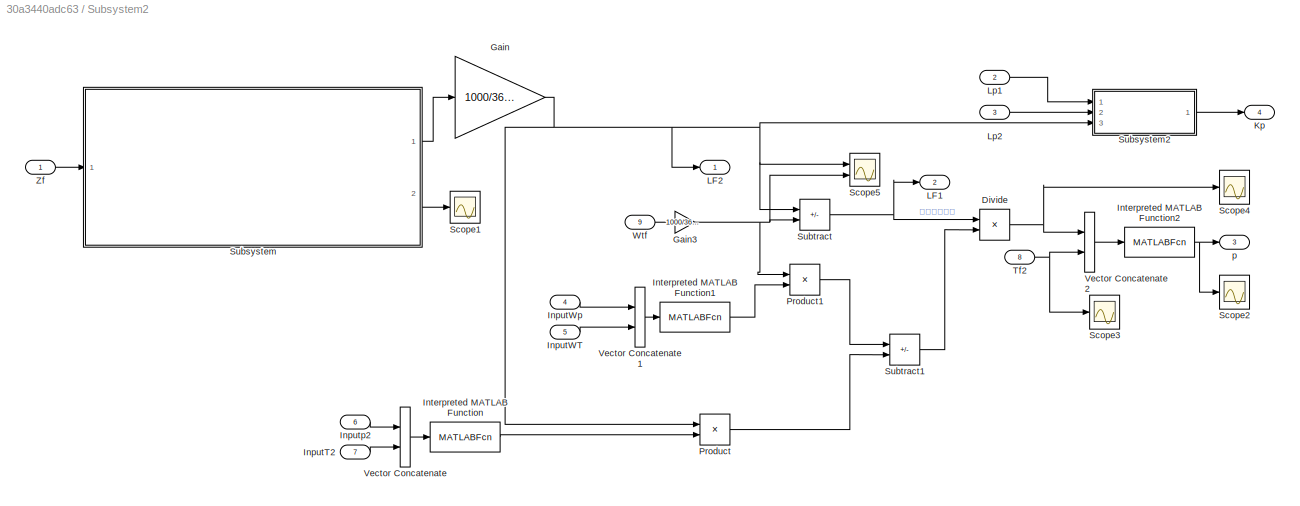
BLOCK [SubSystem] Subsystem2
  Ports = [9, 4]
  RequestExecContextInheritance = off
BLOCK [Product] Subsystem2/Divide
  Inputs = /*
  Ports = [2, 1]
BLOCK [Gain] Subsystem2/Gain
  Gain = 1000/3600
BLOCK [Gain] Subsystem2/Gain3
  Gain = 1000/3600
BLOCK [Inport] Subsystem2/InputT2
  Port = 7
BLOCK [Inport] Subsystem2/InputWT
  Port = 5
BLOCK [Inport] Subsystem2/InputWp
  Port = 4
BLOCK [Inport] Subsystem2/Inputp2
  Port = 6
BLOCK [MATLABFcn] Subsystem2/Interpreted MATLAB Function
  MATLABFcn = precl(u(1),u(2))
  Ports = [1, 1]
BLOCK [MATLABFcn] Subsystem2/Interpreted MATLAB Function1
  MATLABFcn = precl(u(1),u(2))
  Ports = [1, 1]
BLOCK [MATLABFcn] Subsystem2/Interpreted MATLAB Function2
  MATLABFcn = preclP(u(1),u(2))
  Ports = [1, 1]
BLOCK [Outport] Subsystem2/Kp
  Port = 4
  VectorParamsAs1DForOutWhenUnconnected = off
BLOCK [Outport] Subsystem2/LF1
  Port = 2
  VectorParamsAs1DForOutWhenUnconnected = off
BLOCK [Outport] Subsystem2/LF2
  VectorParamsAs1DForOutWhenUnconnected = off
BLOCK [Inport] Subsystem2/Lp1
  Port = 2
BLOCK [Inport] Subsystem2/Lp2
  Port = 3
BLOCK [Product] Subsystem2/Product
  Ports = [2, 1]
BLOCK [Product] Subsystem2/Product1
  Ports = [2, 1]
BLOCK [Scope] Subsystem2/Scope1
  Floating = off
  NumInputPorts = 1
  Ports = [1]
  ScopeSpecificationString = Simulink.scopes.TimeScopeBlockCfg('CurrentConfiguration', extmgr.ConfigurationSet(extmgr.Configuration('Core','General UI',true),extmgr.Configuration('Core','Source UI',true),extmgr.Configuration('Sources','WiredSimulink',true,'DataLoggingVariableName','ScopeData1'),extmgr.Configuration('Visuals','Time Domain',true,'SerializedDisplays',{struct('MinYLimReal','671.93746','MaxYLimReal','1102.86755','...<+1437ch>
BLOCK [Scope] Subsystem2/Scope2
  Floating = off
  NumInputPorts = 1
  Ports = [1]
  ScopeSpecificationString = Simulink.scopes.TimeScopeBlockCfg('CurrentConfiguration', extmgr.ConfigurationSet(extmgr.Configuration('Core','General UI',true),extmgr.Configuration('Core','Source UI',true),extmgr.Configuration('Sources','WiredSimulink',true,'DataLoggingVariableName','ScopeData2'),extmgr.Configuration('Visuals','Time Domain',true,'SerializedDisplays',{struct('MinYLimReal','13.02035','MaxYLimReal','15.74131','YLa...<+1441ch>
BLOCK [Scope] Subsystem2/Scope3
  Floating = off
  NumInputPorts = 1
  Ports = [1]
  ScopeSpecificationString = Simulink.scopes.TimeScopeBlockCfg('CurrentConfiguration', extmgr.ConfigurationSet(extmgr.Configuration('Core','General UI',true),extmgr.Configuration('Core','Source UI',true),extmgr.Configuration('Sources','WiredSimulink',true,'DataLoggingVariableName','ScopeData5'),extmgr.Configuration('Visuals','Time Domain',true,'SerializedDisplays',{struct('MinYLimReal','476.022','MaxYLimReal','554.802','YLabe...<+1408ch>
BLOCK [Scope] Subsystem2/Scope4
  Floating = off
  NumInputPorts = 1
  Ports = [1]
  ScopeSpecificationString = Simulink.scopes.TimeScopeBlockCfg('CurrentConfiguration', extmgr.ConfigurationSet(extmgr.Configuration('Core','General UI',true),extmgr.Configuration('Core','Source UI',true),extmgr.Configuration('Sources','WiredSimulink',true,'DataLoggingVariableName','ScopeData2'),extmgr.Configuration('Visuals','Time Domain',true,'SerializedDisplays',{struct('MinYLimReal','2693.13553','MaxYLimReal','3775.8513','...<+1431ch>
BLOCK [Scope] Subsystem2/Scope5
  Floating = off
  NumInputPorts = 2
  Ports = [2]
  ScopeSpecificationString = Simulink.scopes.TimeScopeBlockCfg('CurrentConfiguration', extmgr.ConfigurationSet(extmgr.Configuration('Core','General UI',true),extmgr.Configuration('Core','Source UI',true),extmgr.Configuration('Sources','WiredSimulink',true,'DataLoggingVariableName','ScopeData3'),extmgr.Configuration('Visuals','Time Domain',true,'SerializedDisplays',{struct('MinYLimReal','-119.84706','MaxYLimReal','1105.04967',...<+1425ch>
BLOCK [SubSystem] Subsystem2/Subsystem
  Ports = [1, 2]
  RequestExecContextInheritance = off
BLOCK [Outport] Subsystem2/Subsystem/LF2
  VectorParamsAs1DForOutWhenUnconnected = off
BLOCK [SubSystem] Subsystem2/Subsystem/MATLAB Function3
  ErrorFcn = Stateflow.Translate.translate
  PermitHierarchicalResolution = ExplicitOnly
  Ports = [1, 2]
  RequestExecContextInheritance = off
  SFBlockType = MATLAB Function
  TreatAsAtomicUnit = on
BLOCK [Demux] Subsystem2/Subsystem/MATLAB Function3/ Demux 
  Outputs = 1
  Ports = [1, 1]
BLOCK [S-Function] Subsystem2/Subsystem/MATLAB Function3/ SFunction 
  EnableBusSupport = on
  FunctionName = sf_sfun
  PortCounts = [1 3]
  Ports = [1, 3]
  SFcnIsStateOwnerBlock = off
  SFunctionDeploymentMode = off
  Tag = Stateflow S-Function 44
BLOCK [Terminator] Subsystem2/Subsystem/MATLAB Function3/ Terminator 
BLOCK [Inport] Subsystem2/Subsystem/MATLAB Function3/Zf
BLOCK [Outport] Subsystem2/Subsystem/MATLAB Function3/y1
  VectorParamsAs1DForOutWhenUnconnected = off
BLOCK [Outport] Subsystem2/Subsystem/MATLAB Function3/y2
  Port = 2
  VectorParamsAs1DForOutWhenUnconnected = off
BLOCK [Outport] Subsystem2/Subsystem/RF2
  Port = 2
  VectorParamsAs1DForOutWhenUnconnected = off
BLOCK [Inport] Subsystem2/Subsystem/Zf
BLOCK [SubSystem] Subsystem2/Subsystem2
  Ports = [3, 1]
  RequestExecContextInheritance = off
BLOCK [Abs] Subsystem2/Subsystem2/Abs
  SaturateOnIntegerOverflow = off
BLOCK [Product] Subsystem2/Subsystem2/Divide
  Inputs = */
  Ports = [2, 1]
BLOCK [Inport] Subsystem2/Subsystem2/F
  Port = 3
BLOCK [Outport] Subsystem2/Subsystem2/KP
  VectorParamsAs1DForOutWhenUnconnected = off
BLOCK [Inport] Subsystem2/Subsystem2/LP1
BLOCK [Inport] Subsystem2/Subsystem2/LP2
  Port = 2
BLOCK [Product] Subsystem2/Subsystem2/Product
  Ports = [2, 1]
BLOCK [Sum] Subsystem2/Subsystem2/Subtract
  IconShape = rectangular
  Inputs = +-
  Ports = [2, 1]
BLOCK [Sum] Subsystem2/Subtract
  IconShape = rectangular
  Inputs = +-
  Ports = [2, 1]
BLOCK [Sum] Subsystem2/Subtract1
  IconShape = rectangular
  Inputs = -+
  Ports = [2, 1]
BLOCK [Inport] Subsystem2/Tf2
  Port = 8
BLOCK [Concatenate] Subsystem2/Vector Concatenate
  Ports = [2, 1]
BLOCK [Concatenate] Subsystem2/Vector Concatenate1
  Ports = [2, 1]
BLOCK [Concatenate] Subsystem2/Vector Concatenate2
  Ports = [2, 1]
BLOCK [Inport] Subsystem2/Wtf
  Port = 9
BLOCK [Inport] Subsystem2/Zf
BLOCK [Outport] Subsystem2/p
  Port = 3
  VectorParamsAs1DForOutWhenUnconnected = off
BLOCK [Sum] Sum1
  Inputs = |++
  Ports = [2, 1]
BLOCK [Sum] Sum2
  Inputs = |++
  Ports = [2, 1]
BLOCK [Sum] Sum3
  Inputs = |++
  Ports = [2, 1]
BLOCK [ToWorkspace] To Workspace
  FixptAsFi = on
  MaxDataPoints = inf
  Ports = [1]
  SampleTime = -1
  SaveFormat = Structure
  VariableName = simout3
BLOCK [TransportDelay] Transport Delay1
  DelayTime = 37
  Ports = [1, 1]
ANNOTATION Subsystem1: hs*A
LINE  :1 -> Subsystem1:9
LINE Add2:1 -> Gain2:1
LINE Add:1 -> Subsystem1:8
LINE Clock10:1 -> MATLAB Function10:1
LINE Clock11:1 -> MATLAB Function11:1
LINE Clock17:1 -> MATLAB Function17:1
LINE Clock18:1 -> MATLAB Function18:1
LINE Clock19:1 -> MATLAB Function19:1
NET Clock1:1 -> MATLAB Function1:1, Subsystem1:5
LINE Clock20:1 -> MATLAB Function20:1
LINE Clock21:1 -> MATLAB Function21:1
LINE Clock22:1 -> MATLAB Function22:1
LINE Clock23:1 -> MATLAB Function23:1
LINE Clock24:1 -> MATLAB Function24:1
LINE Clock2:1 -> MATLAB Function2:1
LINE Clock31:1 -> MATLAB Function31:1
LINE Clock3:1 -> MATLAB Function3:1
LINE Clock6:1 -> MATLAB Function6:1
LINE Clock9:1 -> MATLAB Function9:1
LINE Constant11:1 -> Subsystem1:3
LINE Constant14:1 -> MATLAB Function3:2
LINE Constant15:1 -> MATLAB Function9:2
LINE Constant16:1 -> MATLAB Function11:2
LINE Constant17:1 -> MATLAB Function10:2
LINE Constant18:1 -> Subsystem1:13
LINE Constant1:1 -> MATLAB Function1:2
LINE Constant26:1 -> MATLAB Function17:2
LINE Constant2:1 -> MATLAB Function2:2
LINE Constant33:1 -> MATLAB Function31:2
LINE Constant34:1 -> MATLAB Function18:2
LINE Constant35:1 -> MATLAB Function19:2
LINE Constant36:1 -> MATLAB Function20:2
LINE Constant37:1 -> MATLAB Function21:2
LINE Constant38:1 -> MATLAB Function22:2
LINE Constant39:1 -> MATLAB Function23:2
LINE Constant3:1 -> Product:1
LINE Constant40:1 -> MATLAB Function24:2
LINE Constant4:1 -> Add:2
LINE Constant6:1 -> MATLAB Function6:2
LINE Gain2:1 -> Sum3:1
LINE Gain:1 -> Product:2
LINE MATLAB Function10:1 -> Transport Delay1:1
LINE MATLAB Function11:1 -> Add2:1
LINE MATLAB Function17:1 -> Subsystem2:9
LINE MATLAB Function18:1 -> Subsystem2:2
LINE MATLAB Function19:1 -> Subsystem2:3
LINE MATLAB Function1:1 -> Subsystem1:6
LINE MATLAB Function20:1 -> Subsystem2:4
LINE MATLAB Function21:1 -> Subsystem2:5
NET MATLAB Function22:1 -> Subsystem2:6, Subsystem:3
LINE MATLAB Function23:1 -> Subsystem2:7
NET MATLAB Function24:1 -> Subsystem1:4, Subsystem2:8
NET MATLAB Function2:1 -> Gain:1, MATLAB Function5:1, Scope1:1
LINE MATLAB Function31:1 -> Subsystem2:1
LINE MATLAB Function3:1 -> Sum2:1
LINE MATLAB Function5:1 -> Subsystem1:14
LINE MATLAB Function5:2 -> Subsystem1:15
LINE MATLAB Function6:1 -> Subsystem1:10
LINE MATLAB Function9:1 -> Subsystem1:11
LINE Product:1 -> Add:1
LINE Step1:1 -> Sum1:2
LINE Step2:1 -> Sum2:2
LINE Step3:1 -> Sum3:2
LINE Subsystem/Kp:1 -> Subsystem/Product:1
LINE Subsystem/P2:1 -> Subsystem/Subtract:1
NET Subsystem/Product:1 -> Subsystem/Scope11:1, Subsystem/Subtract:2
LINE Subsystem/Subtract:1 -> Subsystem/P1:1
NET Subsystem/Wf:1 -> Subsystem/Product:2, Subsystem/Product:3
NET Subsystem1/A:1 -> Subsystem1/Product:2, Subsystem1/Scope4:2, Subsystem1/To Workspace1:1
LINE Subsystem1/Add1:1 -> Subsystem1/Gain1:1
LINE Subsystem1/Add3:1 -> Subsystem1/Gain4:1
LINE Subsystem1/Add4:1 -> Subsystem1/Gain3:1
LINE Subsystem1/Add5:1 -> Subsystem1/Memory5:1
LINE Subsystem1/Add:1 -> Subsystem1/Gain:1
LINE Subsystem1/C1:1 -> Subsystem1/MATLAB Function4:2
LINE Subsystem1/C2:1 -> Subsystem1/MATLAB Function4:3
LINE Subsystem1/C3:1 -> Subsystem1/MATLAB Function3:1
LINE Subsystem1/C4:1 -> Subsystem1/MATLAB Function3:2
LINE Subsystem1/Constant1:1 -> Subsystem1/Product5:1
LINE Subsystem1/Constant2:1 -> Subsystem1/Product4:1
LINE Subsystem1/Constant3:1 -> Subsystem1/Product1:2
LINE Subsystem1/Divide:1 -> Subsystem1/Vector Concatenate4:2
LINE Subsystem1/Gain1:1 -> Subsystem1/Memory1:1
LINE Subsystem1/Gain3:1 -> Subsystem1/Tm :6
LINE Subsystem1/Gain4:1 -> Subsystem1/MATLAB Function6:1
LINE Subsystem1/Gain:1 -> Subsystem1/Memory:1
NET Subsystem1/Hf2/Add:1 -> Subsystem1/Hf2/Divide:1, Subsystem1/Hf2/Scope:1
NET Subsystem1/Hf2/Divide:1 -> Subsystem1/Hf2/Hf2:1, Subsystem1/Hf2/Transport Delay:1
NET Subsystem1/Hf2/Hf1:1 -> Subsystem1/Hf2/Product1:2, Subsystem1/Hf2/Scope5:3
NET Subsystem1/Hf2/Mf:1 -> Subsystem1/Hf2/Product:2, Subsystem1/Hf2/Scope5:1, Subsystem1/Hf2/Subtract:1
LINE Subsystem1/Hf2/Product1:1 -> Subsystem1/Hf2/Add:2
LINE Subsystem1/Hf2/Product:1 -> Subsystem1/Hf2/Add:1
NET Subsystem1/Hf2/Q2:1 -> Subsystem1/Hf2/Add:3, Subsystem1/Hf2/Scope5:4
LINE Subsystem1/Hf2/Subtract:1 -> Subsystem1/Hf2/Divide:2
LINE Subsystem1/Hf2/Transport Delay:1 -> Subsystem1/Hf2/Product:1
NET Subsystem1/Hf2/Wf:1 -> Subsystem1/Hf2/Product1:1, Subsystem1/Hf2/Scope5:2, Subsystem1/Hf2/Subtract:2
NET Subsystem1/Hf2:1 -> Subsystem1/Vector Concatenate1:1, Subsystem1/hf2:1
NET Subsystem1/Interpreted MATLAB Function1:1 -> Subsystem1/Hf2:4, Subsystem1/hf1:1
NET Subsystem1/Interpreted MATLAB Function2:1 -> Subsystem1/Add:2, Subsystem1/Scope3:1, Subsystem1/To Workspace:1, Subsystem1/Vector Concatenate3:1, Subsystem1/tf2:1
LINE Subsystem1/Interpreted MATLAB Function3:1 -> Subsystem1/Add1:1
LINE Subsystem1/Interpreted MATLAB Function4:1 -> Subsystem1/Add1:2
LINE Subsystem1/Interpreted MATLAB Function5:1 -> Subsystem1/A:1
LINE Subsystem1/Kp:1 -> Subsystem1/Subsystem:2
LINE Subsystem1/MATLAB Function1:1 -> Subsystem1/Tg:6
LINE Subsystem1/MATLAB Function3:1 -> Subsystem1/Scope4:1
NET Subsystem1/MATLAB Function4:1 -> Subsystem1/Tg:3, Subsystem1/Tm :3
LINE Subsystem1/MATLAB Function6:1 -> Subsystem1/Product4:2
LINE Subsystem1/MATLAB Function7:1 -> Subsystem1/Product5:2
NET Subsystem1/MATLAB Function9:1 -> Subsystem1/Product3:2, Subsystem1/Tg:7
NET Subsystem1/Memory1:1 -> Subsystem1/Divide:2, Subsystem1/Product1:1, Subsystem1/Vector Concatenate4:1
NET Subsystem1/Memory2:1 -> Subsystem1/Scope1:1, Subsystem1/Subtract1:2, Subsystem1/Tg:5, Subsystem1/To Workspace2:1
LINE Subsystem1/Memory3:1 -> Subsystem1/MATLAB Function7:1
NET Subsystem1/Memory4:1 -> Subsystem1/Add3:2, Subsystem1/MATLAB Function9:1
LINE Subsystem1/Memory5:1 -> Subsystem1/求平均压力:1
NET Subsystem1/Memory:1 -> Subsystem1/Scope5:1, Subsystem1/Subsystem1:2, Subsystem1/Subtract1:1, Subsystem1/Tm :1
NET Subsystem1/P1:1 -> Subsystem1/Add5:1, Subsystem1/Subsystem:1, Subsystem1/Vector Concatenate2:2, Subsystem1/Vector Concatenate:1
LINE Subsystem1/Product1:1 -> Subsystem1/Hf2:1
LINE Subsystem1/Product3:1 -> Subsystem1/Tg:4
LINE Subsystem1/Product4:1 -> Subsystem1/Product3:1
LINE Subsystem1/Product5:1 -> Subsystem1/Tm :4
LINE Subsystem1/Product:1 -> Subsystem1/Hf2:2
LINE Subsystem1/Subsystem/Kp:1 -> Subsystem1/Subsystem/Product:1
LINE Subsystem1/Subsystem/P1:1 -> Subsystem1/Subsystem/Subtract:1
LINE Subsystem1/Subsystem/Product:1 -> Subsystem1/Subsystem/Subtract:2
LINE Subsystem1/Subsystem/Subtract:1 -> Subsystem1/Subsystem/P2:1
NET Subsystem1/Subsystem/Wf:1 -> Subsystem1/Subsystem/Product:2, Subsystem1/Subsystem/Product:3
NET Subsystem1/Subsystem1/P1:1 -> Subsystem1/Subsystem1/Scope3:1, Subsystem1/Subsystem1/Vector Concatenate3:2, Subsystem1/Subsystem1/Vector Concatenate4:2, Subsystem1/Subsystem1/Vector Concatenate5:2
NET Subsystem1/Subsystem1/T:1 -> Subsystem1/Subsystem1/Scope4:1, Subsystem1/Subsystem1/Vector Concatenate3:1, Subsystem1/Subsystem1/Vector Concatenate4:1, Subsystem1/Subsystem1/Vector Concatenate5:1
LINE Subsystem1/Subsystem1/Vector Concatenate3:1 -> Subsystem1/Subsystem1/求导热系数:1
LINE Subsystem1/Subsystem1/Vector Concatenate4:1 -> Subsystem1/Subsystem1/求定压比热容:1
LINE Subsystem1/Subsystem1/Vector Concatenate5:1 -> Subsystem1/Subsystem1/求运动粘度:1
NET Subsystem1/Subsystem1/求定压比热容:1 -> Subsystem1/Subsystem1/Scope2:1, Subsystem1/Subsystem1/cp:1
NET Subsystem1/Subsystem1/求导热系数:1 -> Subsystem1/Subsystem1/Scope5:1, Subsystem1/Subsystem1/lamda:1
NET Subsystem1/Subsystem1/求运动粘度:1 -> Subsystem1/Subsystem1/Scope1:1, Subsystem1/Subsystem1/ur:1
LINE Subsystem1/Subsystem1:1 -> Subsystem1/Vector Concatenate4:4
LINE Subsystem1/Subsystem1:2 -> Subsystem1/Vector Concatenate4:5
LINE Subsystem1/Subsystem1:3 -> Subsystem1/Vector Concatenate4:6
NET Subsystem1/Subsystem:1 -> Subsystem1/Add5:2, Subsystem1/P2:1, Subsystem1/Vector Concatenate1:2, Subsystem1/Vector Concatenate3:2
LINE Subsystem1/Subtract1:1 -> Subsystem1/Product:1
LINE Subsystem1/Tamb:1 -> Subsystem1/Tm :7
NET Subsystem1/Tf1:1 -> Subsystem1/Add:1, Subsystem1/Vector Concatenate2:1, Subsystem1/Vector Concatenate:2
LINE Subsystem1/Tf2:1 -> Subsystem1/Scope3:2
LINE Subsystem1/Tg/Add1:1 -> Subsystem1/Tg/Divide1:2
LINE Subsystem1/Tg/Add2:1 -> Subsystem1/Tg/Divide1:1
LINE Subsystem1/Tg/Cpg1:1 -> Subsystem1/Tg/Product2:1
NET Subsystem1/Tg/Cpg2*Mg:1 -> Subsystem1/Tg/Add1:3, Subsystem1/Tg/Product5:2
LINE Subsystem1/Tg/Cpg2:1 -> Subsystem1/Tg/Product6:2
NET Subsystem1/Tg/Divide1:1 -> Subsystem1/Tg/Tg2:1, Subsystem1/Tg/Transport Delay:1
LINE Subsystem1/Tg/Gain1:1 -> Subsystem1/Tg/Add1:2
LINE Subsystem1/Tg/Gain:1 -> Subsystem1/Tg/Subtract:1
LINE Subsystem1/Tg/Product1:1 -> Subsystem1/Tg/Add2:2
LINE Subsystem1/Tg/Product2:1 -> Subsystem1/Tg/Product3:1
LINE Subsystem1/Tg/Product3:1 -> Subsystem1/Tg/Add2:1
LINE Subsystem1/Tg/Product5:1 -> Subsystem1/Tg/Add2:3
LINE Subsystem1/Tg/Product6:1 -> Subsystem1/Tg/Add1:1
LINE Subsystem1/Tg/Subtract:1 -> Subsystem1/Tg/Product1:1
NET Subsystem1/Tg/Tg1:1 -> Subsystem1/Tg/Gain:1, Subsystem1/Tg/Product3:2
LINE Subsystem1/Tg/Tm:1 -> Subsystem1/Tg/Subtract:2
LINE Subsystem1/Tg/Transport Delay:1 -> Subsystem1/Tg/Product5:1
NET Subsystem1/Tg/Wg:1 -> Subsystem1/Tg/Product2:2, Subsystem1/Tg/Product6:1
NET Subsystem1/Tg/a1:1 -> Subsystem1/Tg/Gain1:1, Subsystem1/Tg/Product1:2
NET Subsystem1/Tg1:1 -> Subsystem1/Add3:1, Subsystem1/Add4:1, Subsystem1/MATLAB Function1:1, Subsystem1/Tg:1
NET Subsystem1/Tg:1 -> Subsystem1/Add4:2, Subsystem1/Memory4:1, Subsystem1/tg2:1
LINE Subsystem1/Time1:1 -> Subsystem1/Vector Concatenate1:3
LINE Subsystem1/Tm /Add1:1 -> Subsystem1/Tm /Divide1:2
LINE Subsystem1/Tm /Add2:1 -> Subsystem1/Tm /Divide1:1
NET Subsystem1/Tm /Cpm*Mm:1 -> Subsystem1/Tm /Add1:4, Subsystem1/Tm /Product5:2
NET Subsystem1/Tm /Divide1:1 -> Subsystem1/Tm /Tm:1, Subsystem1/Tm /Transport Delay:1
LINE Subsystem1/Tm /Product1:1 -> Subsystem1/Tm /Add2:2
LINE Subsystem1/Tm /Product3:1 -> Subsystem1/Tm /Add2:1
LINE Subsystem1/Tm /Product4:1 -> Subsystem1/Tm /Add2:3
LINE Subsystem1/Tm /Product5:1 -> Subsystem1/Tm /Add2:4
LINE Subsystem1/Tm /Tamb:1 -> Subsystem1/Tm /Product4:1
LINE Subsystem1/Tm /Tf:1 -> Subsystem1/Tm /Product3:1
LINE Subsystem1/Tm /Tg:1 -> Subsystem1/Tm /Product1:1
LINE Subsystem1/Tm /Transport Delay:1 -> Subsystem1/Tm /Product5:1
NET Subsystem1/Tm /a1:1 -> Subsystem1/Tm /Add1:2, Subsystem1/Tm /Product1:2
NET Subsystem1/Tm /a2:1 -> Subsystem1/Tm /Add1:1, Subsystem1/Tm /Product3:2
NET Subsystem1/Tm /amb:1 -> Subsystem1/Tm /Add1:3, Subsystem1/Tm /Product4:2
NET Subsystem1/Tm :1 -> Subsystem1/Memory2:1, Subsystem1/Memory3:1
LINE Subsystem1/Tm:1 -> Subsystem1/Scope1:2
LINE Subsystem1/Vector Concatenate1:1 -> Subsystem1/Interpreted MATLAB Function2:1
LINE Subsystem1/Vector Concatenate2:1 -> Subsystem1/Interpreted MATLAB Function3:1
LINE Subsystem1/Vector Concatenate3:1 -> Subsystem1/Interpreted MATLAB Function4:1
LINE Subsystem1/Vector Concatenate4:1 -> Subsystem1/Interpreted MATLAB Function5:1
LINE Subsystem1/Vector Concatenate:1 -> Subsystem1/Interpreted MATLAB Function1:1
NET Subsystem1/Wf:1 -> Subsystem1/Hf2:3, Subsystem1/MATLAB Function3:3, Subsystem1/Subsystem:3, Subsystem1/求速度:1
NET Subsystem1/Wg:1 -> Subsystem1/MATLAB Function4:1, Subsystem1/Tg:2
LINE Subsystem1/amb:1 -> Subsystem1/Tm :5
LINE Subsystem1/内直径:1 -> Subsystem1/Vector Concatenate4:3
LINE Subsystem1/求平均压力:1 -> Subsystem1/Subsystem1:1
LINE Subsystem1/求速度:1 -> Subsystem1/Divide:1
LINE Subsystem1:1 -> Out2:1
LINE Subsystem1:2 -> Out1:1
LINE Subsystem1:3 -> Out3:1
LINE Subsystem1:4 -> Out8:1
LINE Subsystem1:5 -> Out4:1
NET Subsystem2/Divide:1 -> Subsystem2/Scope4:1, Subsystem2/Vector Concatenate2:1
NET Subsystem2/Gain3:1 -> Subsystem2/Product1:1, Subsystem2/Scope5:2, Subsystem2/Subtract:2
NET Subsystem2/Gain:1 -> Subsystem2/LF2:1, Subsystem2/Product:1, Subsystem2/Scope5:1, Subsystem2/Subsystem2:3, Subsystem2/Subtract:1
LINE Subsystem2/InputT2:1 -> Subsystem2/Vector Concatenate:2
LINE Subsystem2/InputWT:1 -> Subsystem2/Vector Concatenate1:2
LINE Subsystem2/InputWp:1 -> Subsystem2/Vector Concatenate1:1
LINE Subsystem2/Inputp2:1 -> Subsystem2/Vector Concatenate:1
LINE Subsystem2/Interpreted MATLAB Function1:1 -> Subsystem2/Product1:2
NET Subsystem2/Interpreted MATLAB Function2:1 -> Subsystem2/Scope2:1, Subsystem2/p:1
LINE Subsystem2/Interpreted MATLAB Function:1 -> Subsystem2/Product:2
LINE Subsystem2/Lp1:1 -> Subsystem2/Subsystem2:1
LINE Subsystem2/Lp2:1 -> Subsystem2/Subsystem2:2
LINE Subsystem2/Product1:1 -> Subsystem2/Subtract1:1
LINE Subsystem2/Product:1 -> Subsystem2/Subtract1:2
LINE Subsystem2/Subsystem/MATLAB Function3:1 -> Subsystem2/Subsystem/LF2:1
LINE Subsystem2/Subsystem/MATLAB Function3:2 -> Subsystem2/Subsystem/RF2:1
LINE Subsystem2/Subsystem/Zf:1 -> Subsystem2/Subsystem/MATLAB Function3:1
LINE Subsystem2/Subsystem2/Abs:1 -> Subsystem2/Subsystem2/Divide:1
LINE Subsystem2/Subsystem2/Divide:1 -> Subsystem2/Subsystem2/KP:1
NET Subsystem2/Subsystem2/F:1 -> Subsystem2/Subsystem2/Product:1, Subsystem2/Subsystem2/Product:2
LINE Subsystem2/Subsystem2/LP1:1 -> Subsystem2/Subsystem2/Subtract:1
LINE Subsystem2/Subsystem2/LP2:1 -> Subsystem2/Subsystem2/Subtract:2
LINE Subsystem2/Subsystem2/Product:1 -> Subsystem2/Subsystem2/Divide:2
LINE Subsystem2/Subsystem2/Subtract:1 -> Subsystem2/Subsystem2/Abs:1
LINE Subsystem2/Subsystem2:1 -> Subsystem2/Kp:1
LINE Subsystem2/Subsystem:1 -> Subsystem2/Gain:1
LINE Subsystem2/Subsystem:2 -> Subsystem2/Scope1:1
LINE Subsystem2/Subtract1:1 -> Subsystem2/Divide:2
NET Subsystem2/Subtract:1 -> Subsystem2/Divide:1, Subsystem2/LF1:1
NET Subsystem2/Tf2:1 -> Subsystem2/Scope3:1, Subsystem2/Vector Concatenate2:2
LINE Subsystem2/Vector Concatenate1:1 -> Subsystem2/Interpreted MATLAB Function1:1
LINE Subsystem2/Vector Concatenate2:1 -> Subsystem2/Interpreted MATLAB Function2:1
LINE Subsystem2/Vector Concatenate:1 -> Subsystem2/Interpreted MATLAB Function:1
LINE Subsystem2/Wtf:1 -> Subsystem2/Gain3:1
LINE Subsystem2/Zf:1 -> Subsystem2/Subsystem:1
LINE Subsystem2:1 -> Scope2:1
LINE Subsystem2:2 -> Sum1:1
LINE Subsystem2:3 -> Scope4:1
LINE Subsystem2:4 -> Subsystem:2
LINE Subsystem:1 -> Subsystem1:2
NET Sum1:1 -> Subsystem1:1, Subsystem:1, To Workspace:1
LINE Sum2:1 -> Subsystem1:7
LINE Sum3:1 -> Subsystem1:12
LINE Transport Delay1:1 -> Add2:2
note: NET lines group one-source signal fan-out (src -> all destinations, sorted); 1:1 wires keep LINE
CHART Subsystem1/MATLAB Function6 states=1 transitions=1
  STATE_LABEL 'eML_blk_kernel()'
  STATE_LABEL "SCRIPT:\nfunction y = fcn(T)\nn=400:100:1200;\nm=[0.52,0.45,0.4,0.3,0.28,0.275,0.225,0.215,0.2];\ny =interp1(n,m,T,'spline');\n"
CHART Subsystem1/MATLAB Function7 states=1 transitions=1
  STATE_LABEL 'eML_blk_kernel()'
  STATE_LABEL "SCRIPT:\nfunction y = fcn(T)\nn=400:100:600;\nm=[0.528,0.551,0.581];\ny =interp1(n,m,T,'spline');\n"
CHART MATLAB Function17 states=1 transitions=1
  STATE_LABEL 'eML_blk_kernel()'
  STATE_LABEL 'SCRIPT:\nfunction y = fcn(u,input)\n c=fix(u/1);\nif u==0 ||c==0\n    y=input(1);\nelse\n    y=input(c);\n% y=U3(u);\nend\n'
CHART MATLAB Function18 states=1 transitions=1
  STATE_LABEL 'eML_blk_kernel()'
  STATE_LABEL 'SCRIPT:\nfunction y = fcn(u,input)\n c=fix(u/1);\nif u==0 ||c==0\n    y=input(1);\nelse\n    y=input(c);\n% y=U3(u);\nend\n'
CHART MATLAB Function19 states=1 transitions=1
  STATE_LABEL 'eML_blk_kernel()'
  STATE_LABEL 'SCRIPT:\nfunction y = fcn(u,input)\n c=fix(u/1);\nif u==0 ||c==0\n    y=input(1);\nelse\n    y=input(c);\n% y=U3(u);\nend\n'
CHART MATLAB Function1 states=1 transitions=1
  STATE_LABEL 'eML_blk_kernel()'
  STATE_LABEL 'SCRIPT:\nfunction y = fcn(u,input)\n c=fix(u/1);\nif u==0 ||c==0\n    y=input(1);\nelse\n    y=input(c);\n% y=U3(u);\nend\n'
CHART MATLAB Function20 states=1 transitions=1
  STATE_LABEL 'eML_blk_kernel()'
  STATE_LABEL 'SCRIPT:\nfunction y = fcn(u,input)\n c=fix(u/1);\nif u==0 ||c==0\n    y=input(1);\nelse\n    y=input(c);\n% y=U3(u);\nend\n'
CHART MATLAB Function21 states=1 transitions=1
  STATE_LABEL 'eML_blk_kernel()'
  STATE_LABEL 'SCRIPT:\nfunction y = fcn(u,input)\n c=fix(u/1);\nif u==0 ||c==0\n    y=input(1);\nelse\n    y=input(c);\n% y=U3(u);\nend\n'
CHART MATLAB Function22 states=1 transitions=1
  STATE_LABEL 'eML_blk_kernel()'
  STATE_LABEL 'SCRIPT:\nfunction y = fcn(u,input)\n c=fix(u/1);\nif u==0 ||c==0\n    y=input(1);\nelse\n    y=input(c);\n% y=U3(u);\nend\n'
CHART MATLAB Function23 states=1 transitions=1
  STATE_LABEL 'eML_blk_kernel()'
  STATE_LABEL 'SCRIPT:\nfunction y = fcn(u,input)\n c=fix(u/1);\nif u==0 ||c==0\n    y=input(1);\nelse\n    y=input(c);\n% y=U3(u);\nend\n'
CHART MATLAB Function24 states=1 transitions=1
  STATE_LABEL 'eML_blk_kernel()'
  STATE_LABEL 'SCRIPT:\nfunction y = fcn(u,input)\n c=fix(u/1);\nif u==0 ||c==0\n    y=input(1);\nelse\n    y=input(c);\n% y=U3(u);\nend\n'
CHART Subsystem1/MATLAB Function9 states=1 transitions=1
  STATE_LABEL 'eML_blk_kernel()'
  STATE_LABEL "SCRIPT:\nfunction y = fcn(T)\nn=400:100:1200;\nm=[1.15,1.2,1.23,1.25,1.275,1.285,1.3,1.32,1.33];\ny =interp1(n,m,T,'spline');\n"
CHART MATLAB Function31 states=1 transitions=1
  STATE_LABEL 'eML_blk_kernel()'
  STATE_LABEL 'SCRIPT:\nfunction y = fcn(u,input)\n c=fix(u/1);\nif u==0 ||c==0\n    y=input(1);\nelse\n    y=input(c);\n% y=U3(u);\nend\n'
CHART Subsystem2/Subsystem/MATLAB Function3 states=1 transitions=1
  STATE_LABEL 'eML_blk_kernel()'
  STATE_LABEL 'SCRIPT:\nfunction [y1,y2]= fcn(Zf)\n\n    y1=Zf*1/2;\n    y2=Zf*1/2;\n'
CHART MATLAB Function2 states=1 transitions=1
  STATE_LABEL 'eML_blk_kernel()'
  STATE_LABEL 'SCRIPT:\nfunction y = fcn(u,input)\n c=fix(u/1);\nif u==0 ||c==0\n    y=input(1);\nelse\n    y=input(c);\n% y=U3(u);\nend\n'
CHART Subsystem1/MATLAB Function3 states=1 transitions=1
  STATE_LABEL 'eML_blk_kernel()'
  STATE_LABEL 'SCRIPT:\nfunction y = fcn(C3,C4,Wf)\n\ny = C3+C4*Wf.^0.8;\n'
CHART MATLAB Function5 states=1 transitions=1
  STATE_LABEL 'eML_blk_kernel()'
  STATE_LABEL 'SCRIPT:\nfunction [y1,y2]= fcn(u)\nif u>550\n    y1=2;\n    y2=37;\nelse\n    if u>500\n        y1=2;\n        y2=34;\n    else\n         if u>300\n           y1=5;\n           y2=32;\n         else\n           y1=5;\n           y2=10;\n         end\n    end\nend\n\n'
CHART MATLAB Function3 states=1 transitions=1
  STATE_LABEL 'eML_blk_kernel()'
  STATE_LABEL 'SCRIPT:\nfunction y = fcn(u,input)\n c=fix(u/1);\nif u==0 ||c==0\n    y=input(1);\nelse\n    y=input(c);\n% y=U3(u);\nend\n'
CHART MATLAB Function6 states=1 transitions=1
  STATE_LABEL 'eML_blk_kernel()'
  STATE_LABEL 'SCRIPT:\nfunction y = fcn(u,input)\n c=fix(u/1);\nif u==0 ||c==0\n    y=input(1);\nelse\n    y=input(c);\n% y=U3(u);\nend\n'
CHART MATLAB Function9 states=1 transitions=1
  STATE_LABEL 'eML_blk_kernel()'
  STATE_LABEL 'SCRIPT:\nfunction y = fcn(u,input)\n c=fix(u/1);\nif u==0 ||c==0\n    y=input(1);\nelse\n    y=input(c);\n% y=U3(u);\nend\n'
CHART MATLAB Function10 states=1 transitions=1
  STATE_LABEL 'eML_blk_kernel()'
  STATE_LABEL 'SCRIPT:\nfunction y = fcn(u,input)\n c=fix(u/1);\nif u==0 ||c==0\n    y=input(1);\nelse\n    y=input(c);\n% y=U3(u);\nend\n'
CHART MATLAB Function11 states=1 transitions=1
  STATE_LABEL 'eML_blk_kernel()'
  STATE_LABEL 'SCRIPT:\nfunction y = fcn(u,input)\n c=fix(u/1);\nif u==0 ||c==0\n    y=input(1);\nelse\n    y=input(c);\n% y=U3(u);\nend\n'
CHART Subsystem1/MATLAB Function1 states=1 transitions=1
  STATE_LABEL 'eML_blk_kernel()'
  STATE_LABEL "SCRIPT:\nfunction y = fcn(T)\nn=400:100:1200;\nm=[1.15,1.2,1.23,1.25,1.275,1.285,1.3,1.32,1.33];\ny =interp1(n,m,T,'spline');\n"
CHART Subsystem1/MATLAB Function4 states=1 transitions=1
  STATE_LABEL 'eML_blk_kernel()'
  STATE_LABEL 'SCRIPT:\nfunction y = fcn(Wg,C1,C2)\n\ny = C1+C2*Wg.^0.68;\n'
CHART  states=0 transitions=0
CHART  states=0 transitions=0
CHART  states=0 transitions=0
CHART  states=0 transitions=0
CHART  states=0 transitions=0
CHART  states=0 transitions=0
CHART  states=0 transitions=0
CHART  states=0 transitions=0
CHART  states=0 transitions=0
CHART  states=0 transitions=0
CHART  states=0 transitions=0
CHART  states=0 transitions=0
CHART  states=0 transitions=0
CHART  states=0 transitions=0
CHART  states=0 transitions=0
CHART  states=0 transitions=0
CHART  states=0 transitions=0
CHART  states=0 transitions=0
CHART  states=0 transitions=0
CHART  states=0 transitions=0
CHART  states=0 transitions=0
CHART  states=0 transitions=0
CHART  states=0 transitions=0
CHART  states=0 transitions=0
